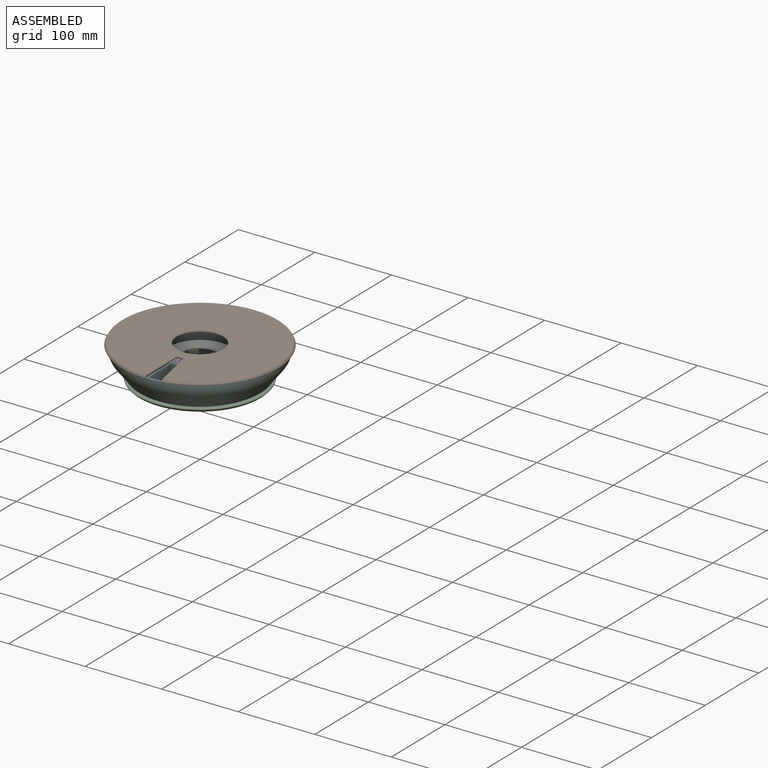
[diagram: assembled view]
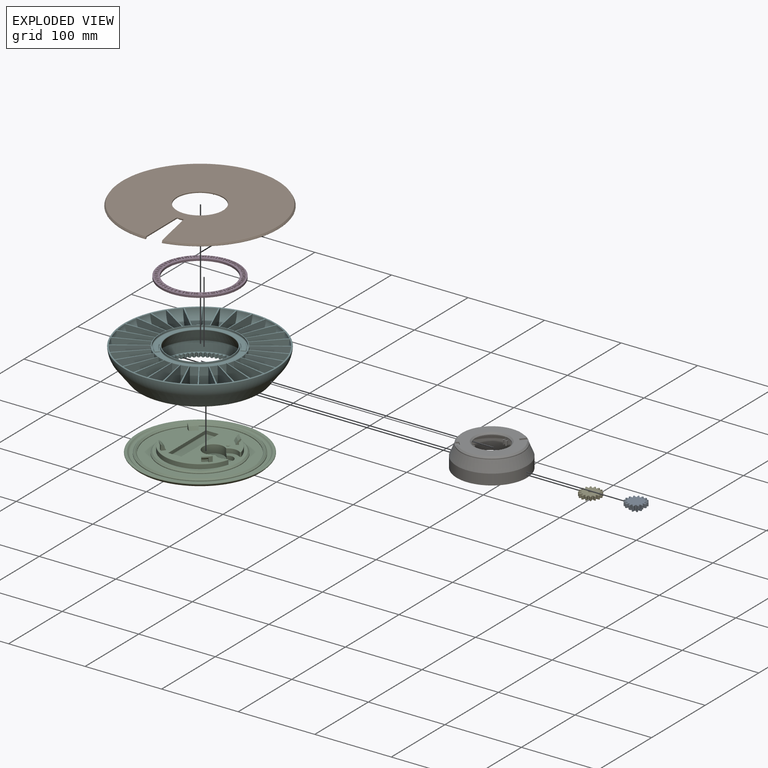
[diagram: exploded view]
GUIDED TOUR — FREECAD ASSEMBLY "smart_medication_box_v3"

This assembly has 7 components, labeled P0..P6 below (a component is one placed body or linked part; the same part can appear more than once), held together by 2 modeled joints plus 9 derived contact edges. A joint is a constraint between two components; its type names the relative motion it leaves free:
  CONTACT — a derived adjacency edge — the two components touch in the source model (clearance under 2% of the assembly's diagonal); it is measured from the geometry, not a modeled constraint,
  REVOLUTE — leaves rotation about the listed axis free (a hinge).
Axis/direction vectors are unit vectors and 'through' points are millimeter coordinates, both in the assembly's world frame.

MATES
  1. REVOLUTE [Revolute] "Joint": P4 <-> P2, axis (0.000, 0.000, 1.000) through (17.75, 0.00, 1.00) mm
  2. REVOLUTE [Revolute] "Joint001": P0 <-> P2, axis (0.000, 0.000, -1.000) through (36.00, 0.00, 1.00) mm
  3. CONTACT "contact_0_4": P0 <-> P4, contact direction (-1.000, 0.000, 0.000) through (27.26, -4.80, 5.98) mm (derived from contact, not a modeled constraint)
  4. CONTACT "contact_0_5": P0 <-> P5, contact direction (-1.000, 0.000, 0.000) through (47.04, 3.34, 10.96) mm (derived from contact, not a modeled constraint)
  5. CONTACT "contact_0_6": P0 <-> P6, contact direction (-0.615, 0.000, 0.789) through (41.70, -4.07, 2.77) mm (derived from contact, not a modeled constraint)
  6. CONTACT "contact_1_3": P1 <-> P3, contact direction (0.000, 0.000, -1.000) through (2.35, -42.67, 43.36) mm (derived from contact, not a modeled constraint)
  7. CONTACT "contact_1_5": P1 <-> P5, contact direction (0.000, 0.000, -1.000) through (-7.81, 39.85, 41.32) mm (derived from contact, not a modeled constraint)
  8. CONTACT "contact_2_5": P2 <-> P5, contact direction (-0.615, 0.000, 0.789) through (-46.35, -8.06, 6.00) mm (derived from contact, not a modeled constraint)
  9. CONTACT "contact_2_6": P2 <-> P6, contact direction (-0.615, 0.000, 0.789) through (30.44, -31.66, 18.80) mm (derived from contact, not a modeled constraint)
  10. CONTACT "contact_3_5": P3 <-> P5, contact direction (0.000, 0.000, -1.000) through (27.28, -32.84, 39.94) mm (derived from contact, not a modeled constraint)
  11. CONTACT "contact_5_6": P5 <-> P6, contact direction (1.000, 0.000, 0.000) through (-45.39, 5.20, 5.56) mm (derived from contact, not a modeled constraint)

ASSEMBLY ORDER
  1. P5 — the base component [order heuristic]
  2. P0 — core [order heuristic]
  3. P3 [order verified]
  4. P6 — core [order heuristic]
  5. P4 — core [order heuristic]
  6. P2 — core [order heuristic]
  7. P1 [order verified]
(P3 verified with a relaxed clearance tolerance: the source model stores slight part interference there.)
Order-tag legend:
  [order verified] — this step's position reverses a verified removal order: the component was checked to insert without passing through the ones already placed.
  [order heuristic] — the first 5 components form the assembly's core: parts whose collision-free extraction could not be verified, listed in mate-graph order.

Of the 7 components, 7 carry a construction recipe — the FreeCAD feature program (sketches with constraints, then the solid features that consume them) that regenerates the part from scratch, quoted from this document or from the linked companion document it references; the rest are supplied as boundary geometry only. The tour below walks the components in assembly order: each is shown spotlighted twice — in the assembled view, then in the exploded view, where a leader line traces a displaced component back to its assembled socket (components that stay in place when exploded have no leader line; saturated green if recipe-attached, orange if geometry-only; every other component desaturated gray) — followed by its recipe or geometry summary and the mates that hold it.
NOTE — this tour is split across 2 documents so each fits a 32k-token context. This is document 1: the component sections continue in the remaining 1 document, each repeating the header above.
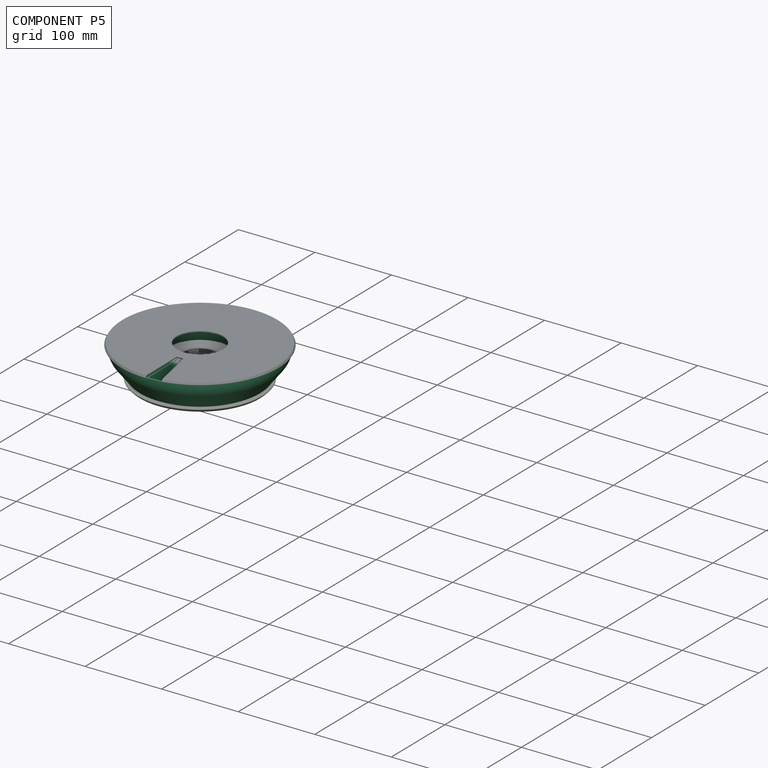
[diagram: component P5 — assembled]
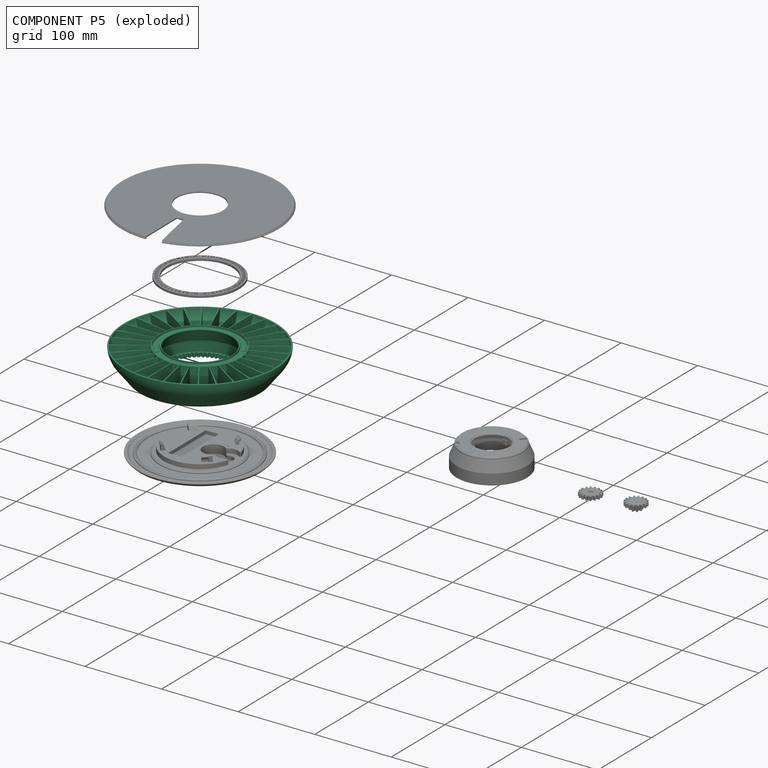
[diagram: component P5 — exploded]
COMPONENT P5 — recipe-attached ("pill_sections", modeled in this document).
Held by: resting contact with P0 (derived edge); resting contact with P1 (derived edge); resting contact with P2 (derived edge); resting contact with P3 (derived edge); resting contact with P6 (derived edge).
Construction recipe (the document's own serialized feature program — sketch geometry with constraints, then the solid features built on it; lengths are millimeters unless a unit is written):

FEATURE [PartDesign::FeaturePython] InternalInvoluteGear  # WARN: FeaturePython — macro-defined, semantics opaque (R4)
  AttacherType = Attacher::AttachEngine3D
  Suppressed = false
  addendum_diameter = 94.2
  angular_backlash = 0
  backlash = 0
  clearance = 0.2
  double_helix = false
  head = -0.4
  head_fillet = 0
  height = 5
  helix_angle = 0
  module = 1.5
  num_teeth = 64
  numpoints = 20
  outside_diameter = 106
  pitch_diameter = 96
  pressure_angle = 20
  properties_from_tool = false
  reversed_backlash = false
  root_diameter = 99.6
  root_fillet = 0
  shift = 0
  simple = false
  thickness = 5
  transverse_pitch = 4.71239
  version = 1.3.0
  expr: angular_backlash = backlash / pitch_diameter * 360 ° / pi
  expr: clearance = 0.2
  expr: module = 1.5
  expr: num_teeth = 64
  expr: pressure_angle = 20
FEATURE [Sketcher::SketchObject] Sketch010
  ArcFitTolerance = 1e-06
  ExternalGeometry = -> [InternalInvoluteGear]
  FullyConstrained = false
  MakeInternals = false
  MapMode = 5
  Placement = pos=(53,0,0) rot=(1,0,0;1.5708rad)
  expr: Constraints[10] = VarSet.outer_wall_thickness
  expr: Constraints[11] = VarSet.outer_wall_thickness
  expr: Constraints[14] = VarSet.outer_wall_thickness
  expr: Constraints[17] = VarSet.fillet_oouter_gear
  expr: Constraints[2] = 5
  expr: Constraints[34] = VarSet.outer_wall_thickness
  expr: Constraints[36] = VarSet.outer_ring_height
  expr: Constraints[37] = VarSet.fillet_oouter_gear
  expr: Constraints[38] = 30
  expr: Constraints[45] = VarSet.fillet_oouter_gear
  expr: Constraints[50] = 50
  expr: Constraints[52] = 10
  expr: Constraints[6] = 25
  expr: Constraints[9] = VarSet.outer_wall_thickness
  sketch-geometry (28):
    g0: LineSegment StartX=0 StartY=0 StartZ=0 EndX=0 EndY=5 EndZ=0
    g1: LineSegment StartX=0 StartY=0 StartZ=0 EndX=24.1018 EndY=0 EndZ=0
    g2: LineSegment StartX=25.5967 StartY=0.67138 StartZ=0 EndX=34.1854 EndY=10.3351 EndZ=0
    g3: LineSegment StartX=24.6985 StartY=2.67138 StartZ=0 EndX=32.6905 EndY=11.6638 EndZ=0
    g4: LineSegment StartX=9.57963 StartY=2 StartZ=0 EndX=23.2036 EndY=2 EndZ=0
    g5: LineSegment StartX=0 StartY=5 StartZ=0 EndX=-2 EndY=5 EndZ=0
    g6: LineSegment StartX=-0.122418 StartY=35.2036 StartZ=0 EndX=0 EndY=7.67973 EndZ=0
    g7: LineSegment StartX=8.57963 StartY=2.26795 StartZ=0 EndX=0.399992 EndY=6.99046 EndZ=0
    g8: ArcOfCircle CenterX=0.799992 CenterY=7.68328 CenterZ=0 NormalX=0 NormalY=0 NormalZ=1 AngleXU=0 Radius=0.8 StartAngle=3.14604 EndAngle=4.18879
    g9: ArcOfCircle CenterX=9.57963 CenterY=4 CenterZ=0 NormalX=0 NormalY=0 NormalZ=1 AngleXU=0 Radius=2 StartAngle=4.18879 EndAngle=4.71239
    g10: GeomPoint [constr] X=9.04373 Y=2 Z=0
    g11: ArcOfCircle CenterX=23.2036 CenterY=4 CenterZ=0 NormalX=0 NormalY=0 NormalZ=1 AngleXU=0 Radius=2 StartAngle=4.71239 EndAngle=5.55662
    g12: GeomPoint [constr] X=24.1018 Y=2 Z=0
    g13: ArcOfCircle CenterX=24.1018 CenterY=2 CenterZ=0 NormalX=0 NormalY=0 NormalZ=1 AngleXU=0 Radius=2 StartAngle=4.71239 EndAngle=5.55662
    g14: GeomPoint [constr] X=25 Y=0 Z=0
    g15: GeomPoint [constr] X=29 Y=4.50065 Z=0
    g16: GeomPoint [constr] X=27 Y=5.26097 Z=0
    g17: ArcOfCircle CenterX=-0.92241 CenterY=35.2 CenterZ=0 NormalX=0 NormalY=0 NormalZ=1 AngleXU=0 Radius=0.8 StartAngle=0.00444768 EndAngle=1.5708
    g18: LineSegment StartX=-10.9224 StartY=36 StartZ=0 EndX=-5.92241 EndY=36 EndZ=0
    g19: ArcOfCircle CenterX=-4.68233 CenterY=44.8792 CenterZ=0 NormalX=0 NormalY=0 NormalZ=1 AngleXU=0 Radius=52 StartAngle=5.55662 EndAngle=6.09299
    g20: ArcOfCircle CenterX=-4.68233 CenterY=44.8792 CenterZ=0 NormalX=0 NormalY=0 NormalZ=1 AngleXU=0 Radius=50 StartAngle=5.55662 EndAngle=6.09148
    g21: ArcOfCircle CenterX=45.187 CenterY=35.2 CenterZ=0 NormalX=0 NormalY=0 NormalZ=1 AngleXU=0 Radius=0.8 StartAngle=1.5708 EndAngle=2.94988
    g22: LineSegment StartX=45.5944 StartY=36 StartZ=0 EndX=45.187 EndY=36 EndZ=0
    g23: ArcOfCircle CenterX=45.5944 CenterY=35.2 CenterZ=0 NormalX=0 NormalY=0 NormalZ=1 AngleXU=0 Radius=0.8 StartAngle=6.09299 EndAngle=7.85398
    g24: ArcOfCircle CenterX=-10.9224 CenterY=35.2 CenterZ=0 NormalX=0 NormalY=0 NormalZ=1 AngleXU=0 Radius=0.8 StartAngle=1.5708 EndAngle=3.66964
    g25: LineSegment StartX=-11.6134 StartY=34.7969 StartZ=0 EndX=-2.05968 EndY=18.418 EndZ=0
    g26: LineSegment StartX=-2.05968 StartY=18.418 StartZ=0 EndX=-2 EndY=5 EndZ=0
    g27: LineSegment StartX=-5.92241 StartY=36 StartZ=0 EndX=-0.92241 EndY=36 EndZ=0
  constraints (68):
    c: Coincident(g0,g-1)
    c: PointOnObject(g0,g-2)
    c: DistanceY(g0,g0) = 5
    c: Coincident(g1,g0)
    c: PointOnObject(g14,g-1)
    c: Parallel(g3,g2)
    c: DistanceX(g1,g14) = 25
    c: DistanceX(g14,g15) = 4
    c: Parallel(g4,g1)
    c: Distance(g1,g4) = 2
    c: DistanceX(g16,g15) = 2
    c: Distance(g14,g3) = 2
    c: Coincident(g5,g0)
    c: Horizontal(g5)
    c: DistanceX(g5,g5) = 2
    c: Tangent(g8,g7) = 1.5708
    c: Tangent(g8,g6) = -1.5708
    c: Radius(g8) = 0.8
    c: PointOnObject(g6,g-2)
    c: PointOnObject(g10,g7)
    c: PointOnObject(g10,g4)
    c: Tangent(g7,g9) = 1.5708
    c: Tangent(g4,g9) = -1.5708
    c: PointOnObject(g12,g4)
    c: PointOnObject(g12,g3)
    c: Tangent(g4,g11) = -1.5708
    c: Tangent(g3,g11) = -1.5708
    c: PointOnObject(g14,g1)
    c: PointOnObject(g14,g2)
    c: Tangent(g1,g13) = -1.5708
    c: Tangent(g2,g13) = -1.5708
    c: PointOnObject(g15,g2)
    c: PointOnObject(g16,g3)
    c: Equal(g13,g11)
    c: Distance(g0,g8) = 2
    c: Tangent(g17,g6) = 1.5708
    c: Distance(g18,g-1) = 36
    c: Radius(g17) = 0.8
    c: Angle(g7,g1) = 0.523599
    c: Equal(g11,g9)
    c: Coincident(g20,g19)
    c: Tangent(g20,g3) = -1.5708
    c: Tangent(g19,g2) = -1.5708
    c: Tangent(g22,g21) = -1.5708
    c: Tangent(g21,g20) = 1.5708
    c: Radius(g21) = 0.8
    c: Tangent(g23,g22) = -1.5708
    c: Tangent(g23,g19) = -1.5708
    c: Equal(g23,g21)
    c: Parallel(g22,g-1)
    c: Radius(g20) = 50
    c: Radius(g11) = 2
    c: DistanceX(g18,g27) = 10
    c: Tangent(g24,g18) = 1.5708
    c: Equal(g24,g17)
    c: Coincident(g26,g25)
    c: Coincident(g26,g5)
    c: Parallel(g26,g6)
    c: Tangent(g25,g24) = -1.5708
    c: Perpendicular(g-2,g18)
    c: Perpendicular(g-2,g27)
    c: Coincident(g18,g27)
    c: Tangent(g27,g17) = 1.5708
    c: Equal(g27,g18)
    c: Angle(g26,g25) = 0.523599
    c: Vertical(g18,g-3)
    c: Distance(g-1,g22) = 36
    c: DistanceX(g-1,g19) = 46.38
FEATURE [PartDesign::Revolution] Revolution001
  Angle = 360
  Angle2 = 60
  Axis = (1e-16,1e-16,1)
  Base = (0,0,0)
  BaseFeature = -> InternalInvoluteGear
  Profile = -> Sketch010
  ReferenceAxis = -> Z_Axis013
  Refine = true
  Reversed = true
  Suppressed = false
  Type = 0
FEATURE [Sketcher::SketchObject] Sketch011
  ArcFitTolerance = 1e-06
  ExternalGeometry = -> [Revolution001]
  FullyConstrained = true
  MakeInternals = false
  MapMode = 5
  Placement = pos=(53,0,0) rot=(1,0,0;1.5708rad)
  sketch-geometry (2):
    g0: LineSegment StartX=-0.92241 StartY=36 StartZ=0 EndX=45.187 EndY=36 EndZ=0
    g1: LineSegment StartX=9.57963 StartY=2 StartZ=0 EndX=23.2036 EndY=2 EndZ=0
  constraints (4):
    c: Coincident(g0,g-11)
    c: Coincident(g0,g-7)
    c: Tangent(g1,g-6) = -1.5708
    c: Coincident(g1,g-8)
FEATURE [PartDesign::Revolution] Revolution002
  Angle = 1
  Angle2 = 60
  Axis = (1e-16,1e-16,1)
  Base = (0,0,0)
  BaseFeature = -> Revolution001
  Midplane = true
  Profile = -> Sketch011
  ReferenceAxis = -> Z_Axis013
  Refine = true
  Suppressed = false
  Type = 0
  expr: Angle = 1
FEATURE [PartDesign::PolarPattern] PolarPattern
  Angle = 360
  Axis = -> Z_Axis013
  BaseFeature = -> Revolution002
  Mode = 0
  Occurrences = 32
  Offset = 120
  Originals = -> [Revolution002]
  Refine = true
  Suppressed = false
  TransformMode = 0
  expr: Occurrences = 32
FEATURE [Sketcher::SketchObject] Sketch015
  ArcFitTolerance = 1e-06
  AttachmentSupport = -> [PolarPattern]
  ExternalGeometry = -> [PolarPattern]
  FullyConstrained = true
  MakeInternals = false
  MapMode = 5
  Placement = pos=(4e-15,4e-15,36) rot=(0,0,1;0rad)
  expr: Constraints[13] = 9
  sketch-geometry (5):
    g0: Circle [constr] CenterX=0 CenterY=0 CenterZ=0 NormalX=0 NormalY=0 NormalZ=1 AngleXU=0 Radius=52.0776
    g1: Circle CenterX=0 CenterY=0 CenterZ=0 NormalX=0 NormalY=0 NormalZ=1 AngleXU=0 Radius=42.5776
    g2: Circle CenterX=0 CenterY=0 CenterZ=0 NormalX=0 NormalY=0 NormalZ=1 AngleXU=0 Radius=51.5776
    g3: LineSegment [constr] StartX=-42.5776 StartY=0 StartZ=0 EndX=-42.0776 EndY=0 EndZ=0
    g4: LineSegment [constr] StartX=-52.0776 StartY=0 StartZ=0 EndX=-51.5776 EndY=0 EndZ=0
  constraints (14):
    c: Coincident(g0,g-3)
    c: PointOnObject(g-4,g0)
    c: Coincident(g1,g0)
    c: Coincident(g2,g0)
    c: PointOnObject(g3,g1)
    c: PointOnObject(g3,g-3)
    c: PointOnObject(g3,g-1)
    c: PointOnObject(g3,g-1)
    c: PointOnObject(g4,g0)
    c: PointOnObject(g4,g2)
    c: PointOnObject(g4,g-1)
    c: PointOnObject(g4,g-1)
    c: Equal(g4,g3)
    c: Distance(g2,g1) = 9
FEATURE [PartDesign::Pocket] Pocket005
  BaseFeature = -> PolarPattern
  Direction = (0,0,-1)
  Length = 3
  Length2 = 5
  Profile = -> Sketch015
  ReferenceAxis = -> Sketch015 [N_Axis]
  Refine = true
  Suppressed = false
  Type = 0
  expr: Length = 3
FEATURE [PartDesign::Fillet] Fillet003
  Base = -> Pocket005 [Edge312,Edge949]
  BaseFeature = -> Pocket005
  Radius = 1
  Refine = true
  SupportTransform = false
  Suppressed = false
  UseAllEdges = false
  expr: Radius = 1
FEATURE [Sketcher::SketchObject] Sketch016
  ArcFitTolerance = 1e-06
  AttachmentSupport = -> [Fillet003]
  FullyConstrained = false
  MakeInternals = false
  MapMode = 5
  Placement = pos=(0,0,33) rot=(0,0,1;0rad)
  sketch-geometry (8):
    g0: ArcOfCircle CenterX=4e-15 CenterY=4e-15 CenterZ=0 NormalX=0 NormalY=0 NormalZ=1 AngleXU=0 Radius=44.0776 StartAngle=1.01451 EndAngle=1.42895
    g1: ArcOfCircle CenterX=4e-15 CenterY=4e-15 CenterZ=0 NormalX=0 NormalY=0 NormalZ=1 AngleXU=0 Radius=50.0776 StartAngle=1.01451 EndAngle=1.42895
    g2: LineSegment StartX=6.23147 StartY=43.6349 StartZ=0 EndX=7.07972 EndY=49.5746 EndZ=0
    g3: LineSegment StartX=23.2744 StartY=37.4318 StartZ=0 EndX=26.4426 EndY=42.5271 EndZ=0
    g4: LineSegment [constr] StartX=23.2744 StartY=37.4318 StartZ=0 EndX=23.0104 EndY=37.0071 EndZ=0
    g5: LineSegment [constr] StartX=26.4426 StartY=42.5271 StartZ=0 EndX=26.7066 EndY=42.9517 EndZ=0
    g6: LineSegment [constr] StartX=4e-15 StartY=4e-15 StartZ=0 EndX=-40.9495 EndY=14.9044 EndZ=0
    g7: LineSegment [constr] StartX=4e-15 StartY=4e-15 StartZ=0 EndX=14.9044 EndY=40.9495 EndZ=0
  constraints (22):
    c: Coincident(g0,g-4)
    c: Coincident(g1,g0)
    c: Coincident(g2,g0)
    c: Coincident(g2,g1)
    c: Coincident(g3,g0)
    c: Coincident(g3,g1)
    c: Equal(g2,g3)
    c: Perpendicular(g0,g2)
    c: Coincident(g4,g0)
    c: PointOnObject(g4,g-4)
    c: Coincident(g5,g1)
    c: PointOnObject(g5,g-3)
    c: Parallel(g4,g3)
    c: Parallel(g3,g5)
    c: Equal(g5,g4)
    c: Distance(g3,g3) = 6
    c: Coincident(g6,g0)
    c: Angle(g6,g-1) = 0.349066
    c: PointOnObject(g6,g-4)
    c: Coincident(g7,g0)
    c: Perpendicular(g6,g7)
    c: Equal(g7,g6)
FEATURE [PartDesign::Pad] Pad004
  BaseFeature = -> Fillet003
  Direction = (0,0,1)
  Length = 1.5
  Length2 = 10
  Profile = -> Sketch016
  ReferenceAxis = -> Sketch016 [N_Axis]
  Refine = true
  Suppressed = false
  Type = 0
  expr: Length = 1.5
FEATURE [PartDesign::PolarPattern] PolarPattern002
  Angle = 360
  Axis = -> Sketch016 [N_Axis]
  BaseFeature = -> Pad004
  Mode = 0
  Occurrences = 2
  Offset = 120
  Originals = -> [Pad004]
  Refine = true
  Suppressed = false
  TransformMode = 0
FEATURE [PartDesign::Fillet] Fillet004
  Base = -> PolarPattern002 [Face177,Face175]
  BaseFeature = -> PolarPattern002
  Radius = 1
  Refine = true
  SupportTransform = false
  Suppressed = false
  UseAllEdges = false
FEATURE [PartDesign::Body] Body016  label="outer_gear"
  AllowCompound = false
  Group = -> [InternalInvoluteGear,Sketch010,Revolution001,Sketch011,Revolution002,PolarPattern,Sketch015,Pocket005,Fillet003,Sketch016,Pad004,PolarPattern002,Fillet004]
  Origin = -> Origin026
  Placement = pos=(0,0,41) rot=(0,0,1;0rad)
  Tip = -> Fillet004
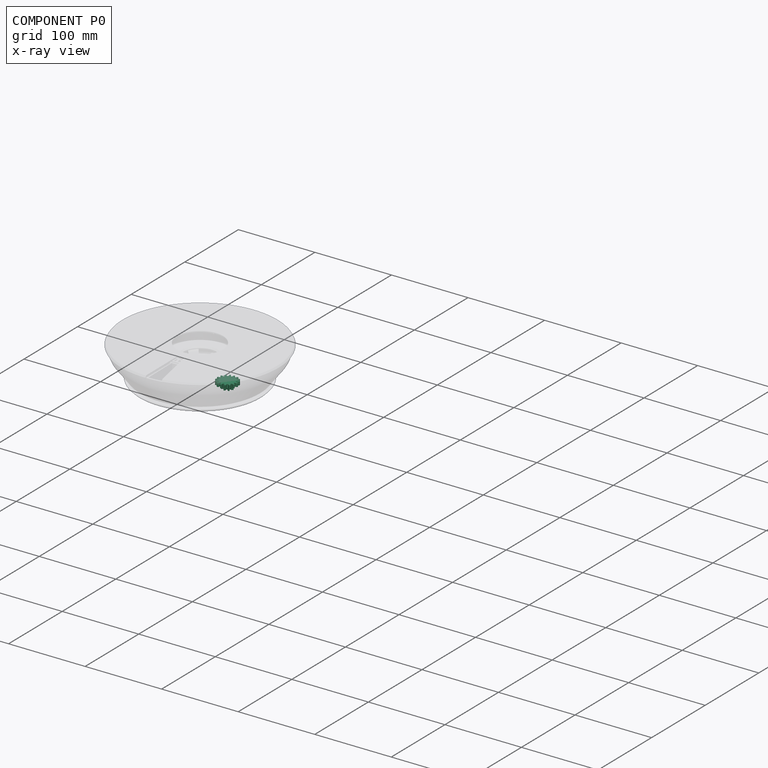
[diagram: component P0 — x-ray view]
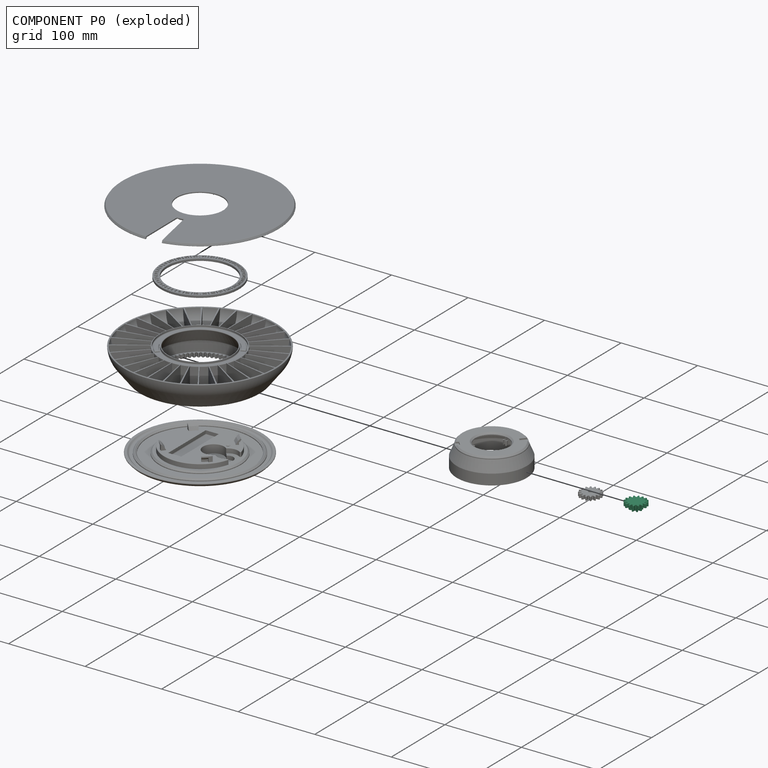
[diagram: component P0 — exploded]
COMPONENT P0 — recipe-attached ("middle_gear", modeled in this document).
Held by: REVOLUTE mate "Joint001" to P2; resting contact with P4 (derived edge); resting contact with P5 (derived edge); resting contact with P6 (derived edge).
Construction recipe (the document's own serialized feature program — sketch geometry with constraints, then the solid features built on it; lengths are millimeters unless a unit is written):

FEATURE [PartDesign::Boolean] Boolean
  Group = -> [InvoluteGear003,InvoluteGear002,Body017]
  Refine = true
  Suppressed = false
  Type = 0
  UsePlacement = true
FEATURE [PartDesign::Fillet] Fillet001
  Base = -> Boolean [Face4]
  BaseFeature = -> Boolean
  Radius = 0.25
  Refine = true
  SupportTransform = false
  Suppressed = false
  UseAllEdges = false
  expr: Radius = 0.25
FEATURE [PartDesign::Fillet] Fillet002
  Base = -> Fillet001 [Face4,Face243]
  BaseFeature = -> Fillet001
  Radius = 0.2
  Refine = true
  SupportTransform = false
  Suppressed = false
  UseAllEdges = false
  expr: Radius = 0.2
FEATURE [Sketcher::SketchObject] Sketch035
  ArcFitTolerance = 1e-06
  AttachmentSupport = -> [Fillet002]
  FullyConstrained = true
  MakeInternals = false
  MapMode = 5
  Placement = pos=(0,0,56) rot=(0,0,1;0rad)
  expr: Constraints[0] = 5.1
  sketch-geometry (1):
    g0: Circle CenterX=0 CenterY=0 CenterZ=0 NormalX=0 NormalY=0 NormalZ=1 AngleXU=0 Radius=2.55
  constraints (2):
    c: Diameter(g0) = 5.1
    c: Coincident(g0,g-1)
FEATURE [PartDesign::Pocket] Pocket009
  BaseFeature = -> Fillet002
  Direction = (0,0,-1)
  Length = 2.55
  Length2 = 5
  Profile = -> Sketch035
  ReferenceAxis = -> Sketch035 [N_Axis]
  Refine = true
  Suppressed = false
  Type = 0
  expr: Length = 2.5 * 1.02
FEATURE [PartDesign::Fillet] Fillet022
  Base = -> Pocket009 [Edge1011,Edge1009]
  BaseFeature = -> Pocket009
  Radius = 0.2
  Refine = true
  SupportTransform = false
  Suppressed = false
  UseAllEdges = false
  expr: Radius = 0.2
FEATURE [PartDesign::Body] Body018
  AllowCompound = false
  Group = -> [Boolean,Fillet001,Fillet002,Sketch035,Pocket009,Fillet022]
  Origin = -> Origin030
  Tip = -> Fillet022
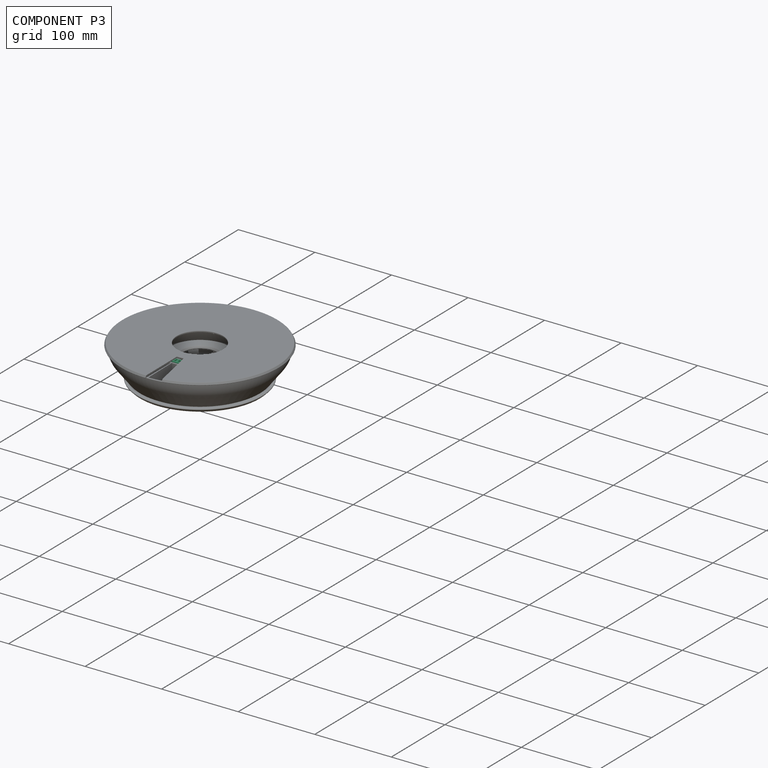
[diagram: component P3 — assembled]
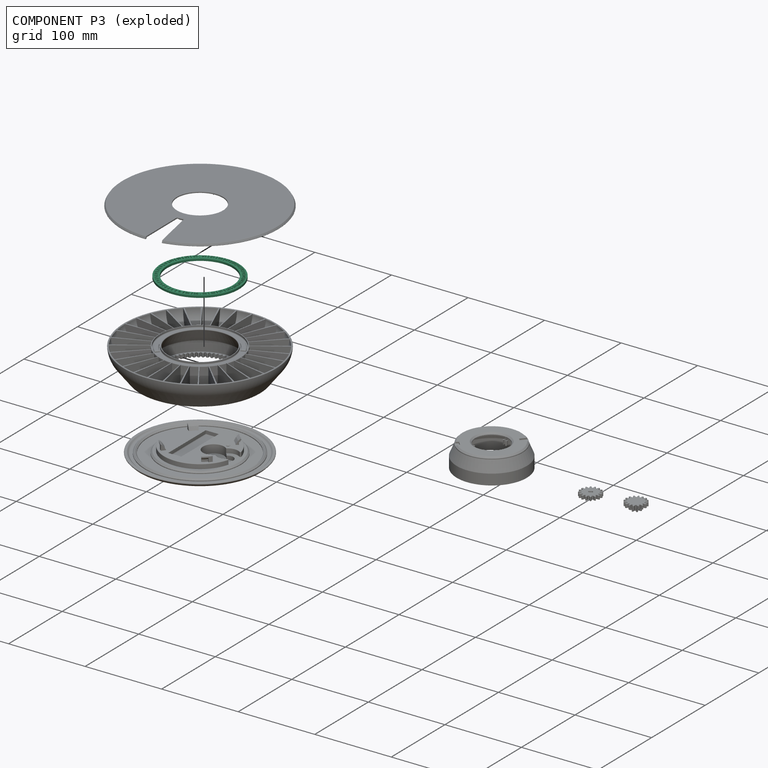
[diagram: component P3 — exploded]
COMPONENT P3 — recipe-attached ("desc_upper_ring", modeled in this document).
Held by: resting contact with P1 (derived edge); resting contact with P5 (derived edge).
Construction recipe (the document's own serialized feature program — sketch geometry with constraints, then the solid features built on it; lengths are millimeters unless a unit is written):

FEATURE [Sketcher::SketchObject] Sketch021
  ArcFitTolerance = 1e-06
  AttachmentSupport = -> [XY_Plane018]
  FullyConstrained = true
  MakeInternals = false
  MapMode = 2
  expr: Constraints[2] = 42.75 * 2
  expr: Constraints[3] = 51 * 2
  sketch-geometry (2):
    g0: Circle CenterX=0 CenterY=0 CenterZ=0 NormalX=0 NormalY=0 NormalZ=1 AngleXU=0 Radius=42.75
    g1: Circle CenterX=0 CenterY=0 CenterZ=0 NormalX=0 NormalY=0 NormalZ=1 AngleXU=0 Radius=51
  constraints (4):
    c: Coincident(g0,g-1)
    c: Coincident(g1,g0)
    c: Diameter(g0) = 85.5
    c: Diameter(g1) = 102
FEATURE [PartDesign::Pad] Pad006
  Direction = (0,0,1)
  Length = 3
  Length2 = 10
  Profile = -> Sketch021
  ReferenceAxis = -> Sketch021 [N_Axis]
  Refine = true
  Suppressed = false
  Type = 0
  expr: Length = 3
FEATURE [Sketcher::SketchObject] Sketch022
  ArcFitTolerance = 1e-06
  AttachmentSupport = -> [Pad006]
  FullyConstrained = false
  MakeInternals = false
  MapMode = 5
  Placement = pos=(0,0,3) rot=(0,0,1;0rad)
  sketch-geometry (4):
    g0: ArcOfCircle CenterX=0 CenterY=0 CenterZ=0 NormalX=0 NormalY=0 NormalZ=1 AngleXU=0 Radius=44.0776 StartAngle=1.00579 EndAngle=1.42022
    g1: ArcOfCircle CenterX=0 CenterY=0 CenterZ=0 NormalX=0 NormalY=0 NormalZ=1 AngleXU=0 Radius=50.0776 StartAngle=1.00579 EndAngle=1.42022
    g2: LineSegment StartX=6.61199 StartY=43.5789 StartZ=0 EndX=7.51204 EndY=49.511 EndZ=0
    g3: LineSegment StartX=23.6002 StartY=37.2272 StartZ=0 EndX=26.8127 EndY=42.2947 EndZ=0
  constraints (8):
    c: Coincident(g1,g0)
    c: Coincident(g2,g0)
    c: Coincident(g2,g1)
    c: Coincident(g3,g0)
    c: Coincident(g3,g1)
    c: Equal(g2,g3)
    c: Perpendicular(g0,g2)
    c: Distance(g3,g3) = 6
FEATURE [PartDesign::Pocket] Pocket006
  BaseFeature = -> Pad006
  Direction = (0,0,-1)
  Length = 1.5
  Length2 = 5
  Profile = -> Sketch022
  ReferenceAxis = -> Sketch022 [N_Axis]
  Refine = true
  Suppressed = false
  Type = 0
  expr: Length = 1.5
FEATURE [PartDesign::PolarPattern] PolarPattern005
  Angle = 360
  Axis = -> Sketch022 [N_Axis]
  BaseFeature = -> Pocket006
  Mode = 0
  Occurrences = 2
  Offset = 120
  Originals = -> [Pocket006]
  Refine = true
  Suppressed = false
  TransformMode = 0
FEATURE [PartDesign::Fillet] Fillet010
  Base = -> PolarPattern005 [Face2]
  BaseFeature = -> PolarPattern005
  Radius = 0.3
  Refine = true
  SupportTransform = false
  Suppressed = false
  UseAllEdges = false
  expr: Radius = 0.3
FEATURE [PartDesign::Fillet] Fillet011
  Base = -> Fillet010 [Face3]
  BaseFeature = -> Fillet010
  Radius = 0.4
  Refine = true
  SupportTransform = false
  Suppressed = false
  UseAllEdges = false
  expr: Radius = 0.4
FEATURE [Sketcher::SketchObject] Sketch023
  ArcFitTolerance = 1e-06
  AttachmentSupport = -> [Fillet011]
  FullyConstrained = false
  MakeInternals = false
  MapMode = 5
  Placement = pos=(0,0,0) rot=(1,0,0;3.14159rad)
  sketch-geometry (1190):
    g0: BSplineCurve PolesCount=2 KnotsCount=2 Degree=1 IsPeriodic=0
    g1: BSplineCurve PolesCount=2 KnotsCount=2 Degree=1 IsPeriodic=0
    g2: BSplineCurve PolesCount=2 KnotsCount=2 Degree=1 IsPeriodic=0
    g3: BSplineCurve PolesCount=2 KnotsCount=2 Degree=1 IsPeriodic=0
    g4: BSplineCurve PolesCount=2 KnotsCount=2 Degree=1 IsPeriodic=0
    g5: BSplineCurve PolesCount=2 KnotsCount=2 Degree=1 IsPeriodic=0
    g6: BSplineCurve PolesCount=2 KnotsCount=2 Degree=1 IsPeriodic=0
    g7: BSplineCurve PolesCount=2 KnotsCount=2 Degree=1 IsPeriodic=0
    g8: BSplineCurve PolesCount=2 KnotsCount=2 Degree=1 IsPeriodic=0
    g9: BSplineCurve PolesCount=2 KnotsCount=2 Degree=1 IsPeriodic=0
    g10: BSplineCurve PolesCount=2 KnotsCount=2 Degree=1 IsPeriodic=0
    g11: BSplineCurve PolesCount=2 KnotsCount=2 Degree=1 IsPeriodic=0
    g12: BSplineCurve PolesCount=2 KnotsCount=2 Degree=1 IsPeriodic=0
    g13: BSplineCurve PolesCount=2 KnotsCount=2 Degree=1 IsPeriodic=0
    g14: BSplineCurve PolesCount=2 KnotsCount=2 Degree=1 IsPeriodic=0
    g15: BSplineCurve PolesCount=2 KnotsCount=2 Degree=1 IsPeriodic=0
    g16: BSplineCurve PolesCount=2 KnotsCount=2 Degree=1 IsPeriodic=0
    g17: BSplineCurve PolesCount=2 KnotsCount=2 Degree=1 IsPeriodic=0
    g18: BSplineCurve PolesCount=2 KnotsCount=2 Degree=1 IsPeriodic=0
    g19: BSplineCurve PolesCount=2 KnotsCount=2 Degree=1 IsPeriodic=0
    g20: BSplineCurve PolesCount=2 KnotsCount=2 Degree=1 IsPeriodic=0
    g21: BSplineCurve PolesCount=2 KnotsCount=2 Degree=1 IsPeriodic=0
    g22: BSplineCurve PolesCount=2 KnotsCount=2 Degree=1 IsPeriodic=0
    g23: BSplineCurve PolesCount=2 KnotsCount=2 Degree=1 IsPeriodic=0
    g24: BSplineCurve PolesCount=2 KnotsCount=2 Degree=1 IsPeriodic=0
    g25: BSplineCurve PolesCount=2 KnotsCount=2 Degree=1 IsPeriodic=0
    g26: BSplineCurve PolesCount=2 KnotsCount=2 Degree=1 IsPeriodic=0
    g27: BSplineCurve PolesCount=2 KnotsCount=2 Degree=1 IsPeriodic=0
    g28: BSplineCurve PolesCount=2 KnotsCount=2 Degree=1 IsPeriodic=0
    g29: BSplineCurve PolesCount=2 KnotsCount=2 Degree=1 IsPeriodic=0
    g30: BSplineCurve PolesCount=2 KnotsCount=2 Degree=1 IsPeriodic=0
    g31: BSplineCurve PolesCount=2 KnotsCount=2 Degree=1 IsPeriodic=0
    g32: BSplineCurve PolesCount=2 KnotsCount=2 Degree=1 IsPeriodic=0
    g33: BSplineCurve PolesCount=2 KnotsCount=2 Degree=1 IsPeriodic=0
    g34: BSplineCurve PolesCount=2 KnotsCount=2 Degree=1 IsPeriodic=0
    g35: BSplineCurve PolesCount=2 KnotsCount=2 Degree=1 IsPeriodic=0
    g36: BSplineCurve PolesCount=2 KnotsCount=2 Degree=1 IsPeriodic=0
    g37: BSplineCurve PolesCount=2 KnotsCount=2 Degree=1 IsPeriodic=0
    g38: BSplineCurve PolesCount=2 KnotsCount=2 Degree=1 IsPeriodic=0
    g39: BSplineCurve PolesCount=2 KnotsCount=2 Degree=1 IsPeriodic=0
    g40: BSplineCurve PolesCount=2 KnotsCount=2 Degree=1 IsPeriodic=0
    g41: BSplineCurve PolesCount=2 KnotsCount=2 Degree=1 IsPeriodic=0
    g42: BSplineCurve PolesCount=2 KnotsCount=2 Degree=1 IsPeriodic=0
    g43: BSplineCurve PolesCount=2 KnotsCount=2 Degree=1 IsPeriodic=0
    g44: BSplineCurve PolesCount=2 KnotsCount=2 Degree=1 IsPeriodic=0
    g45: BSplineCurve PolesCount=2 KnotsCount=2 Degree=1 IsPeriodic=0
    g46: BSplineCurve PolesCount=2 KnotsCount=2 Degree=1 IsPeriodic=0
    g47: BSplineCurve PolesCount=2 KnotsCount=2 Degree=1 IsPeriodic=0
    g48: BSplineCurve PolesCount=2 KnotsCount=2 Degree=1 IsPeriodic=0
    g49: BSplineCurve PolesCount=2 KnotsCount=2 Degree=1 IsPeriodic=0
    g50: BSplineCurve PolesCount=2 KnotsCount=2 Degree=1 IsPeriodic=0
    g51: BSplineCurve PolesCount=2 KnotsCount=2 Degree=1 IsPeriodic=0
    g52: BSplineCurve PolesCount=2 KnotsCount=2 Degree=1 IsPeriodic=0
    g53: BSplineCurve PolesCount=2 KnotsCount=2 Degree=1 IsPeriodic=0
    g54: BSplineCurve PolesCount=2 KnotsCount=2 Degree=1 IsPeriodic=0
    g55: BSplineCurve PolesCount=2 KnotsCount=2 Degree=1 IsPeriodic=0
    g56: BSplineCurve PolesCount=2 KnotsCount=2 Degree=1 IsPeriodic=0
    g57: BSplineCurve PolesCount=2 KnotsCount=2 Degree=1 IsPeriodic=0
    g58: BSplineCurve PolesCount=2 KnotsCount=2 Degree=1 IsPeriodic=0
    g59: BSplineCurve PolesCount=2 KnotsCount=2 Degree=1 IsPeriodic=0
    g60: BSplineCurve PolesCount=2 KnotsCount=2 Degree=1 IsPeriodic=0
    g61: BSplineCurve PolesCount=2 KnotsCount=2 Degree=1 IsPeriodic=0
    g62: BSplineCurve PolesCount=2 KnotsCount=2 Degree=1 IsPeriodic=0
    g63: BSplineCurve PolesCount=2 KnotsCount=2 Degree=1 IsPeriodic=0
    g64: BSplineCurve PolesCount=2 KnotsCount=2 Degree=1 IsPeriodic=0
    g65: BSplineCurve PolesCount=2 KnotsCount=2 Degree=1 IsPeriodic=0
    g66: BSplineCurve PolesCount=2 KnotsCount=2 Degree=1 IsPeriodic=0
    g67: BSplineCurve PolesCount=2 KnotsCount=2 Degree=1 IsPeriodic=0
    g68: BSplineCurve PolesCount=2 KnotsCount=2 Degree=1 IsPeriodic=0
    g69: BSplineCurve PolesCount=2 KnotsCount=2 Degree=1 IsPeriodic=0
    g70: BSplineCurve PolesCount=2 KnotsCount=2 Degree=1 IsPeriodic=0
    g71: BSplineCurve PolesCount=2 KnotsCount=2 Degree=1 IsPeriodic=0
    g72: BSplineCurve PolesCount=2 KnotsCount=2 Degree=1 IsPeriodic=0
    g73: BSplineCurve PolesCount=2 KnotsCount=2 Degree=1 IsPeriodic=0
    g74: BSplineCurve PolesCount=2 KnotsCount=2 Degree=1 IsPeriodic=0
    g75: BSplineCurve PolesCount=2 KnotsCount=2 Degree=1 IsPeriodic=0
    g76: BSplineCurve PolesCount=2 KnotsCount=2 Degree=1 IsPeriodic=0
    g77: BSplineCurve PolesCount=2 KnotsCount=2 Degree=1 IsPeriodic=0
    g78: BSplineCurve PolesCount=2 KnotsCount=2 Degree=1 IsPeriodic=0
    g79: BSplineCurve PolesCount=2 KnotsCount=2 Degree=1 IsPeriodic=0
    g80: BSplineCurve PolesCount=2 KnotsCount=2 Degree=1 IsPeriodic=0
    g81: BSplineCurve PolesCount=2 KnotsCount=2 Degree=1 IsPeriodic=0
    g82: BSplineCurve PolesCount=2 KnotsCount=2 Degree=1 IsPeriodic=0
    g83: BSplineCurve PolesCount=2 KnotsCount=2 Degree=1 IsPeriodic=0
    g84: BSplineCurve PolesCount=2 KnotsCount=2 Degree=1 IsPeriodic=0
    g85: BSplineCurve PolesCount=2 KnotsCount=2 Degree=1 IsPeriodic=0
    g86: BSplineCurve PolesCount=2 KnotsCount=2 Degree=1 IsPeriodic=0
    g87: BSplineCurve PolesCount=2 KnotsCount=2 Degree=1 IsPeriodic=0
    g88: BSplineCurve PolesCount=2 KnotsCount=2 Degree=1 IsPeriodic=0
    g89: BSplineCurve PolesCount=2 KnotsCount=2 Degree=1 IsPeriodic=0
    g90: BSplineCurve PolesCount=2 KnotsCount=2 Degree=1 IsPeriodic=0
    g91: BSplineCurve PolesCount=2 KnotsCount=2 Degree=1 IsPeriodic=0
    g92: BSplineCurve PolesCount=2 KnotsCount=2 Degree=1 IsPeriodic=0
    g93: BSplineCurve PolesCount=2 KnotsCount=2 Degree=1 IsPeriodic=0
    g94: BSplineCurve PolesCount=2 KnotsCount=2 Degree=1 IsPeriodic=0
    g95: BSplineCurve PolesCount=2 KnotsCount=2 Degree=1 IsPeriodic=0
    g96: BSplineCurve PolesCount=2 KnotsCount=2 Degree=1 IsPeriodic=0
    g97: BSplineCurve PolesCount=2 KnotsCount=2 Degree=1 IsPeriodic=0
    g98: BSplineCurve PolesCount=2 KnotsCount=2 Degree=1 IsPeriodic=0
    g99: BSplineCurve PolesCount=2 KnotsCount=2 Degree=1 IsPeriodic=0
    g100: BSplineCurve PolesCount=2 KnotsCount=2 Degree=1 IsPeriodic=0
    g101: BSplineCurve PolesCount=2 KnotsCount=2 Degree=1 IsPeriodic=0
    g102: BSplineCurve PolesCount=2 KnotsCount=2 Degree=1 IsPeriodic=0
    g103: BSplineCurve PolesCount=2 KnotsCount=2 Degree=1 IsPeriodic=0
    g104: BSplineCurve PolesCount=2 KnotsCount=2 Degree=1 IsPeriodic=0
    g105: BSplineCurve PolesCount=2 KnotsCount=2 Degree=1 IsPeriodic=0
    g106: BSplineCurve PolesCount=2 KnotsCount=2 Degree=1 IsPeriodic=0
    g107: BSplineCurve PolesCount=2 KnotsCount=2 Degree=1 IsPeriodic=0
    g108: BSplineCurve PolesCount=2 KnotsCount=2 Degree=1 IsPeriodic=0
    g109: BSplineCurve PolesCount=2 KnotsCount=2 Degree=1 IsPeriodic=0
    g110: BSplineCurve PolesCount=2 KnotsCount=2 Degree=1 IsPeriodic=0
    g111: BSplineCurve PolesCount=2 KnotsCount=2 Degree=1 IsPeriodic=0
    g112: BSplineCurve PolesCount=2 KnotsCount=2 Degree=1 IsPeriodic=0
    g113: BSplineCurve PolesCount=2 KnotsCount=2 Degree=1 IsPeriodic=0
    g114: BSplineCurve PolesCount=2 KnotsCount=2 Degree=1 IsPeriodic=0
    g115: BSplineCurve PolesCount=2 KnotsCount=2 Degree=1 IsPeriodic=0
    g116: BSplineCurve PolesCount=2 KnotsCount=2 Degree=1 IsPeriodic=0
    g117: BSplineCurve PolesCount=2 KnotsCount=2 Degree=1 IsPeriodic=0
    g118: BSplineCurve PolesCount=2 KnotsCount=2 Degree=1 IsPeriodic=0
    g119: BSplineCurve PolesCount=2 KnotsCount=2 Degree=1 IsPeriodic=0
    g120: BSplineCurve PolesCount=2 KnotsCount=2 Degree=1 IsPeriodic=0
    g121: BSplineCurve PolesCount=2 KnotsCount=2 Degree=1 IsPeriodic=0
    g122: BSplineCurve PolesCount=2 KnotsCount=2 Degree=1 IsPeriodic=0
    g123: BSplineCurve PolesCount=2 KnotsCount=2 Degree=1 IsPeriodic=0
    g124: BSplineCurve PolesCount=2 KnotsCount=2 Degree=1 IsPeriodic=0
    g125: BSplineCurve PolesCount=2 KnotsCount=2 Degree=1 IsPeriodic=0
    g126: BSplineCurve PolesCount=2 KnotsCount=2 Degree=1 IsPeriodic=0
    g127: BSplineCurve PolesCount=2 KnotsCount=2 Degree=1 IsPeriodic=0
    g128: BSplineCurve PolesCount=3 KnotsCount=2 Degree=2 IsPeriodic=0
    g129: BSplineCurve PolesCount=3 KnotsCount=2 Degree=2 IsPeriodic=0
    g130: BSplineCurve PolesCount=3 KnotsCount=2 Degree=2 IsPeriodic=0
    g131: BSplineCurve PolesCount=3 KnotsCount=2 Degree=2 IsPeriodic=0
    g132: BSplineCurve PolesCount=3 KnotsCount=2 Degree=2 IsPeriodic=0
    g133: BSplineCurve PolesCount=3 KnotsCount=2 Degree=2 IsPeriodic=0
    g134: BSplineCurve PolesCount=3 KnotsCount=2 Degree=2 IsPeriodic=0
    g135: BSplineCurve PolesCount=3 KnotsCount=2 Degree=2 IsPeriodic=0
    g136: BSplineCurve PolesCount=3 KnotsCount=2 Degree=2 IsPeriodic=0
    g137: BSplineCurve PolesCount=3 KnotsCount=2 Degree=2 IsPeriodic=0
    g138: BSplineCurve PolesCount=3 KnotsCount=2 Degree=2 IsPeriodic=0
    g139: BSplineCurve PolesCount=3 KnotsCount=2 Degree=2 IsPeriodic=0
    g140: BSplineCurve PolesCount=3 KnotsCount=2 Degree=2 IsPeriodic=0
    g141: BSplineCurve PolesCount=3 KnotsCount=2 Degree=2 IsPeriodic=0
    g142: BSplineCurve PolesCount=3 KnotsCount=2 Degree=2 IsPeriodic=0
    g143: BSplineCurve PolesCount=3 KnotsCount=2 Degree=2 IsPeriodic=0
    g144: BSplineCurve PolesCount=2 KnotsCount=2 Degree=1 IsPeriodic=0
    g145: BSplineCurve PolesCount=2 KnotsCount=2 Degree=1 IsPeriodic=0
    g146: BSplineCurve PolesCount=2 KnotsCount=2 Degree=1 IsPeriodic=0
    g147: BSplineCurve PolesCount=2 KnotsCount=2 Degree=1 IsPeriodic=0
    g148: BSplineCurve PolesCount=2 KnotsCount=2 Degree=1 IsPeriodic=0
    g149: BSplineCurve PolesCount=2 KnotsCount=2 Degree=1 IsPeriodic=0
    g150: BSplineCurve PolesCount=2 KnotsCount=2 Degree=1 IsPeriodic=0
    g151: BSplineCurve PolesCount=2 KnotsCount=2 Degree=1 IsPeriodic=0
    g152: BSplineCurve PolesCount=2 KnotsCount=2 Degree=1 IsPeriodic=0
    g153: BSplineCurve PolesCount=2 KnotsCount=2 Degree=1 IsPeriodic=0
    g154: BSplineCurve PolesCount=2 KnotsCount=2 Degree=1 IsPeriodic=0
    g155: BSplineCurve PolesCount=2 KnotsCount=2 Degree=1 IsPeriodic=0
    g156: BSplineCurve PolesCount=3 KnotsCount=2 Degree=2 IsPeriodic=0
    g157: BSplineCurve PolesCount=3 KnotsCount=2 Degree=2 IsPeriodic=0
    g158: BSplineCurve PolesCount=3 KnotsCount=2 Degree=2 IsPeriodic=0
    g159: BSplineCurve PolesCount=3 KnotsCount=2 Degree=2 IsPeriodic=0
    g160: BSplineCurve PolesCount=3 KnotsCount=2 Degree=2 IsPeriodic=0
    g161: BSplineCurve PolesCount=3 KnotsCount=2 Degree=2 IsPeriodic=0
    g162: BSplineCurve PolesCount=3 KnotsCount=2 Degree=2 IsPeriodic=0
    g163: BSplineCurve PolesCount=3 KnotsCount=2 Degree=2 IsPeriodic=0
    g164: BSplineCurve PolesCount=3 KnotsCount=2 Degree=2 IsPeriodic=0
    g165: BSplineCurve PolesCount=3 KnotsCount=2 Degree=2 IsPeriodic=0
    g166: BSplineCurve PolesCount=2 KnotsCount=2 Degree=1 IsPeriodic=0
    g167: BSplineCurve PolesCount=3 KnotsCount=2 Degree=2 IsPeriodic=0
    g168: BSplineCurve PolesCount=3 KnotsCount=2 Degree=2 IsPeriodic=0
    g169: BSplineCurve PolesCount=3 KnotsCount=2 Degree=2 IsPeriodic=0
    g170: BSplineCurve PolesCount=3 KnotsCount=2 Degree=2 IsPeriodic=0
    g171: BSplineCurve PolesCount=3 KnotsCount=2 Degree=2 IsPeriodic=0
    g172: BSplineCurve PolesCount=3 KnotsCount=2 Degree=2 IsPeriodic=0
    g173: BSplineCurve PolesCount=3 KnotsCount=2 Degree=2 IsPeriodic=0
    g174: BSplineCurve PolesCount=3 KnotsCount=2 Degree=2 IsPeriodic=0
    g175: BSplineCurve PolesCount=3 KnotsCount=2 Degree=2 IsPeriodic=0
    g176: BSplineCurve PolesCount=2 KnotsCount=2 Degree=1 IsPeriodic=0
    g177: BSplineCurve PolesCount=2 KnotsCount=2 Degree=1 IsPeriodic=0
    g178: BSplineCurve PolesCount=2 KnotsCount=2 Degree=1 IsPeriodic=0
    g179: BSplineCurve PolesCount=3 KnotsCount=2 Degree=2 IsPeriodic=0
    g180: BSplineCurve PolesCount=3 KnotsCount=2 Degree=2 IsPeriodic=0
    g181: BSplineCurve PolesCount=3 KnotsCount=2 Degree=2 IsPeriodic=0
    g182: BSplineCurve PolesCount=3 KnotsCount=2 Degree=2 IsPeriodic=0
    g183: BSplineCurve PolesCount=2 KnotsCount=2 Degree=1 IsPeriodic=0
    g184: BSplineCurve PolesCount=3 KnotsCount=2 Degree=2 IsPeriodic=0
    g185: BSplineCurve PolesCount=3 KnotsCount=2 Degree=2 IsPeriodic=0
    g186: BSplineCurve PolesCount=3 KnotsCount=2 Degree=2 IsPeriodic=0
    g187: BSplineCurve PolesCount=3 KnotsCount=2 Degree=2 IsPeriodic=0
    g188: BSplineCurve PolesCount=3 KnotsCount=2 Degree=2 IsPeriodic=0
    g189: BSplineCurve PolesCount=2 KnotsCount=2 Degree=1 IsPeriodic=0
    g190: BSplineCurve PolesCount=2 KnotsCount=2 Degree=1 IsPeriodic=0
    g191: BSplineCurve PolesCount=2 KnotsCount=2 Degree=1 IsPeriodic=0
    g192: BSplineCurve PolesCount=3 KnotsCount=2 Degree=2 IsPeriodic=0
    g193: BSplineCurve PolesCount=3 KnotsCount=2 Degree=2 IsPeriodic=0
    g194: BSplineCurve PolesCount=3 KnotsCount=2 Degree=2 IsPeriodic=0
    g195: BSplineCurve PolesCount=3 KnotsCount=2 Degree=2 IsPeriodic=0
    g196: BSplineCurve PolesCount=3 KnotsCount=2 Degree=2 IsPeriodic=0
    g197: BSplineCurve PolesCount=3 KnotsCount=2 Degree=2 IsPeriodic=0
    g198: BSplineCurve PolesCount=2 KnotsCount=2 Degree=1 IsPeriodic=0
    g199: BSplineCurve PolesCount=3 KnotsCount=2 Degree=2 IsPeriodic=0
    g200: BSplineCurve PolesCount=3 KnotsCount=2 Degree=2 IsPeriodic=0
    g201: BSplineCurve PolesCount=3 KnotsCount=2 Degree=2 IsPeriodic=0
    g202: BSplineCurve PolesCount=3 KnotsCount=2 Degree=2 IsPeriodic=0
    g203: BSplineCurve PolesCount=3 KnotsCount=2 Degree=2 IsPeriodic=0
    g204: BSplineCurve PolesCount=3 KnotsCount=2 Degree=2 IsPeriodic=0
    g205: BSplineCurve PolesCount=2 KnotsCount=2 Degree=1 IsPeriodic=0
    g206: BSplineCurve PolesCount=3 KnotsCount=2 Degree=2 IsPeriodic=0
    g207: BSplineCurve PolesCount=3 KnotsCount=2 Degree=2 IsPeriodic=0
    g208: BSplineCurve PolesCount=2 KnotsCount=2 Degree=1 IsPeriodic=0
    g209: BSplineCurve PolesCount=2 KnotsCount=2 Degree=1 IsPeriodic=0
    g210: BSplineCurve PolesCount=2 KnotsCount=2 Degree=1 IsPeriodic=0
    g211: BSplineCurve PolesCount=2 KnotsCount=2 Degree=1 IsPeriodic=0
    g212: BSplineCurve PolesCount=2 KnotsCount=2 Degree=1 IsPeriodic=0
    g213: BSplineCurve PolesCount=2 KnotsCount=2 Degree=1 IsPeriodic=0
    g214: BSplineCurve PolesCount=2 KnotsCount=2 Degree=1 IsPeriodic=0
    g215: BSplineCurve PolesCount=2 KnotsCount=2 Degree=1 IsPeriodic=0
    g216: BSplineCurve PolesCount=2 KnotsCount=2 Degree=1 IsPeriodic=0
    g217: BSplineCurve PolesCount=2 KnotsCount=2 Degree=1 IsPeriodic=0
    g218: BSplineCurve PolesCount=2 KnotsCount=2 Degree=1 IsPeriodic=0
    g219: BSplineCurve PolesCount=2 KnotsCount=2 Degree=1 IsPeriodic=0
    g220: BSplineCurve PolesCount=2 KnotsCount=2 Degree=1 IsPeriodic=0
    g221: BSplineCurve PolesCount=2 KnotsCount=2 Degree=1 IsPeriodic=0
    g222: BSplineCurve PolesCount=2 KnotsCount=2 Degree=1 IsPeriodic=0
    g223: BSplineCurve PolesCount=2 KnotsCount=2 Degree=1 IsPeriodic=0
    g224: BSplineCurve PolesCount=3 KnotsCount=2 Degree=2 IsPeriodic=0
    g225: BSplineCurve PolesCount=3 KnotsCount=2 Degree=2 IsPeriodic=0
    g226: BSplineCurve PolesCount=3 KnotsCount=2 Degree=2 IsPeriodic=0
    g227: BSplineCurve PolesCount=3 KnotsCount=2 Degree=2 IsPeriodic=0
    g228: BSplineCurve PolesCount=3 KnotsCount=2 Degree=2 IsPeriodic=0
    g229: BSplineCurve PolesCount=3 KnotsCount=2 Degree=2 IsPeriodic=0
    g230: BSplineCurve PolesCount=2 KnotsCount=2 Degree=1 IsPeriodic=0
    g231: BSplineCurve PolesCount=3 KnotsCount=2 Degree=2 IsPeriodic=0
    g232: BSplineCurve PolesCount=3 KnotsCount=2 Degree=2 IsPeriodic=0
    g233: BSplineCurve PolesCount=3 KnotsCount=2 Degree=2 IsPeriodic=0
    g234: BSplineCurve PolesCount=3 KnotsCount=2 Degree=2 IsPeriodic=0
    g235: BSplineCurve PolesCount=3 KnotsCount=2 Degree=2 IsPeriodic=0
    g236: BSplineCurve PolesCount=3 KnotsCount=2 Degree=2 IsPeriodic=0
    g237: BSplineCurve PolesCount=3 KnotsCount=2 Degree=2 IsPeriodic=0
    g238: BSplineCurve PolesCount=2 KnotsCount=2 Degree=1 IsPeriodic=0
    g239: BSplineCurve PolesCount=2 KnotsCount=2 Degree=1 IsPeriodic=0
    g240: BSplineCurve PolesCount=2 KnotsCount=2 Degree=1 IsPeriodic=0
    g241: BSplineCurve PolesCount=2 KnotsCount=2 Degree=1 IsPeriodic=0
    g242: BSplineCurve PolesCount=2 KnotsCount=2 Degree=1 IsPeriodic=0
    g243: BSplineCurve PolesCount=2 KnotsCount=2 Degree=1 IsPeriodic=0
    g244: BSplineCurve PolesCount=3 KnotsCount=2 Degree=2 IsPeriodic=0
    g245: BSplineCurve PolesCount=3 KnotsCount=2 Degree=2 IsPeriodic=0
    g246: BSplineCurve PolesCount=3 KnotsCount=2 Degree=2 IsPeriodic=0
    g247: BSplineCurve PolesCount=3 KnotsCount=2 Degree=2 IsPeriodic=0
    g248: BSplineCurve PolesCount=3 KnotsCount=2 Degree=2 IsPeriodic=0
    g249: BSplineCurve PolesCount=3 KnotsCount=2 Degree=2 IsPeriodic=0
    g250: BSplineCurve PolesCount=3 KnotsCount=2 Degree=2 IsPeriodic=0
    g251: BSplineCurve PolesCount=3 KnotsCount=2 Degree=2 IsPeriodic=0
    g252: BSplineCurve PolesCount=3 KnotsCount=2 Degree=2 IsPeriodic=0
    g253: BSplineCurve PolesCount=3 KnotsCount=2 Degree=2 IsPeriodic=0
    g254: BSplineCurve PolesCount=3 KnotsCount=2 Degree=2 IsPeriodic=0
    g255: BSplineCurve PolesCount=3 KnotsCount=2 Degree=2 IsPeriodic=0
    g256: BSplineCurve PolesCount=3 KnotsCount=2 Degree=2 IsPeriodic=0
    g257: BSplineCurve PolesCount=3 KnotsCount=2 Degree=2 IsPeriodic=0
    g258: BSplineCurve PolesCount=3 KnotsCount=2 Degree=2 IsPeriodic=0
    g259: BSplineCurve PolesCount=3 KnotsCount=2 Degree=2 IsPeriodic=0
    g260: BSplineCurve PolesCount=3 KnotsCount=2 Degree=2 IsPeriodic=0
    g261: BSplineCurve PolesCount=2 KnotsCount=2 Degree=1 IsPeriodic=0
    g262: BSplineCurve PolesCount=3 KnotsCount=2 Degree=2 IsPeriodic=0
    g263: BSplineCurve PolesCount=3 KnotsCount=2 Degree=2 IsPeriodic=0
    g264: BSplineCurve PolesCount=3 KnotsCount=2 Degree=2 IsPeriodic=0
    g265: BSplineCurve PolesCount=3 KnotsCount=2 Degree=2 IsPeriodic=0
    g266: BSplineCurve PolesCount=3 KnotsCount=2 Degree=2 IsPeriodic=0
    g267: BSplineCurve PolesCount=3 KnotsCount=2 Degree=2 IsPeriodic=0
    g268: BSplineCurve PolesCount=3 KnotsCount=2 Degree=2 IsPeriodic=0
    g269: BSplineCurve PolesCount=3 KnotsCount=2 Degree=2 IsPeriodic=0
    g270: BSplineCurve PolesCount=3 KnotsCount=2 Degree=2 IsPeriodic=0
    g271: BSplineCurve PolesCount=3 KnotsCount=2 Degree=2 IsPeriodic=0
    g272: BSplineCurve PolesCount=3 KnotsCount=2 Degree=2 IsPeriodic=0
    g273: BSplineCurve PolesCount=2 KnotsCount=2 Degree=1 IsPeriodic=0
    g274: BSplineCurve PolesCount=3 KnotsCount=2 Degree=2 IsPeriodic=0
    g275: BSplineCurve PolesCount=3 KnotsCount=2 Degree=2 IsPeriodic=0
    g276: BSplineCurve PolesCount=2 KnotsCount=2 Degree=1 IsPeriodic=0
    g277: BSplineCurve PolesCount=2 KnotsCount=2 Degree=1 IsPeriodic=0
    g278: BSplineCurve PolesCount=2 KnotsCount=2 Degree=1 IsPeriodic=0
    g279: BSplineCurve PolesCount=2 KnotsCount=2 Degree=1 IsPeriodic=0
    g280: BSplineCurve PolesCount=3 KnotsCount=2 Degree=2 IsPeriodic=0
    g281: BSplineCurve PolesCount=3 KnotsCount=2 Degree=2 IsPeriodic=0
    g282: BSplineCurve PolesCount=3 KnotsCount=2 Degree=2 IsPeriodic=0
    g283: BSplineCurve PolesCount=3 KnotsCount=2 Degree=2 IsPeriodic=0
    g284: BSplineCurve PolesCount=3 KnotsCount=2 Degree=2 IsPeriodic=0
    g285: BSplineCurve PolesCount=2 KnotsCount=2 Degree=1 IsPeriodic=0
    g286: BSplineCurve PolesCount=3 KnotsCount=2 Degree=2 IsPeriodic=0
    g287: BSplineCurve PolesCount=3 KnotsCount=2 Degree=2 IsPeriodic=0
    g288: BSplineCurve PolesCount=3 KnotsCount=2 Degree=2 IsPeriodic=0
    g289: BSplineCurve PolesCount=3 KnotsCount=2 Degree=2 IsPeriodic=0
    g290: BSplineCurve PolesCount=3 KnotsCount=2 Degree=2 IsPeriodic=0
    g291: BSplineCurve PolesCount=3 KnotsCount=2 Degree=2 IsPeriodic=0
    g292: BSplineCurve PolesCount=2 KnotsCount=2 Degree=1 IsPeriodic=0
    g293: BSplineCurve PolesCount=3 KnotsCount=2 Degree=2 IsPeriodic=0
    g294: BSplineCurve PolesCount=3 KnotsCount=2 Degree=2 IsPeriodic=0
    g295: BSplineCurve PolesCount=3 KnotsCount=2 Degree=2 IsPeriodic=0
    g296: BSplineCurve PolesCount=3 KnotsCount=2 Degree=2 IsPeriodic=0
    g297: BSplineCurve PolesCount=3 KnotsCount=2 Degree=2 IsPeriodic=0
    g298: BSplineCurve PolesCount=3 KnotsCount=2 Degree=2 IsPeriodic=0
    g299: BSplineCurve PolesCount=3 KnotsCount=2 Degree=2 IsPeriodic=0
    g300: BSplineCurve PolesCount=3 KnotsCount=2 Degree=2 IsPeriodic=0
    g301: BSplineCurve PolesCount=3 KnotsCount=2 Degree=2 IsPeriodic=0
    g302: BSplineCurve PolesCount=3 KnotsCount=2 Degree=2 IsPeriodic=0
    g303: BSplineCurve PolesCount=3 KnotsCount=2 Degree=2 IsPeriodic=0
    g304: BSplineCurve PolesCount=3 KnotsCount=2 Degree=2 IsPeriodic=0
    g305: BSplineCurve PolesCount=3 KnotsCount=2 Degree=2 IsPeriodic=0
    g306: BSplineCurve PolesCount=3 KnotsCount=2 Degree=2 IsPeriodic=0
    g307: BSplineCurve PolesCount=3 KnotsCount=2 Degree=2 IsPeriodic=0
    g308: BSplineCurve PolesCount=3 KnotsCount=2 Degree=2 IsPeriodic=0
    g309: BSplineCurve PolesCount=3 KnotsCount=2 Degree=2 IsPeriodic=0
    g310: BSplineCurve PolesCount=3 KnotsCount=2 Degree=2 IsPeriodic=0
    g311: BSplineCurve PolesCount=3 KnotsCount=2 Degree=2 IsPeriodic=0
    g312: BSplineCurve PolesCount=3 KnotsCount=2 Degree=2 IsPeriodic=0
    g313: BSplineCurve PolesCount=3 KnotsCount=2 Degree=2 IsPeriodic=0
    g314: BSplineCurve PolesCount=3 KnotsCount=2 Degree=2 IsPeriodic=0
    g315: BSplineCurve PolesCount=3 KnotsCount=2 Degree=2 IsPeriodic=0
    g316: BSplineCurve PolesCount=3 KnotsCount=2 Degree=2 IsPeriodic=0
    g317: BSplineCurve PolesCount=3 KnotsCount=2 Degree=2 IsPeriodic=0
    g318: BSplineCurve PolesCount=3 KnotsCount=2 Degree=2 IsPeriodic=0
    g319: BSplineCurve PolesCount=3 KnotsCount=2 Degree=2 IsPeriodic=0
    g320: BSplineCurve PolesCount=2 KnotsCount=2 Degree=1 IsPeriodic=0
    g321: BSplineCurve PolesCount=3 KnotsCount=2 Degree=2 IsPeriodic=0
    g322: BSplineCurve PolesCount=3 KnotsCount=2 Degree=2 IsPeriodic=0
    g323: BSplineCurve PolesCount=3 KnotsCount=2 Degree=2 IsPeriodic=0
    g324: BSplineCurve PolesCount=3 KnotsCount=2 Degree=2 IsPeriodic=0
    g325: BSplineCurve PolesCount=3 KnotsCount=2 Degree=2 IsPeriodic=0
    g326: BSplineCurve PolesCount=3 KnotsCount=2 Degree=2 IsPeriodic=0
    g327: BSplineCurve PolesCount=3 KnotsCount=2 Degree=2 IsPeriodic=0
    g328: BSplineCurve PolesCount=3 KnotsCount=2 Degree=2 IsPeriodic=0
    g329: BSplineCurve PolesCount=3 KnotsCount=2 Degree=2 IsPeriodic=0
    g330: BSplineCurve PolesCount=3 KnotsCount=2 Degree=2 IsPeriodic=0
    g331: BSplineCurve PolesCount=3 KnotsCount=2 Degree=2 IsPeriodic=0
    g332: BSplineCurve PolesCount=3 KnotsCount=2 Degree=2 IsPeriodic=0
    g333: BSplineCurve PolesCount=3 KnotsCount=2 Degree=2 IsPeriodic=0
    g334: BSplineCurve PolesCount=3 KnotsCount=2 Degree=2 IsPeriodic=0
    g335: BSplineCurve PolesCount=3 KnotsCount=2 Degree=2 IsPeriodic=0
    g336: BSplineCurve PolesCount=3 KnotsCount=2 Degree=2 IsPeriodic=0
    g337: BSplineCurve PolesCount=2 KnotsCount=2 Degree=1 IsPeriodic=0
    g338: BSplineCurve PolesCount=2 KnotsCount=2 Degree=1 IsPeriodic=0
    g339: BSplineCurve PolesCount=2 KnotsCount=2 Degree=1 IsPeriodic=0
    g340: BSplineCurve PolesCount=2 KnotsCount=2 Degree=1 IsPeriodic=0
    g341: BSplineCurve PolesCount=2 KnotsCount=2 Degree=1 IsPeriodic=0
    g342: BSplineCurve PolesCount=2 KnotsCount=2 Degree=1 IsPeriodic=0
    g343: BSplineCurve PolesCount=2 KnotsCount=2 Degree=1 IsPeriodic=0
    g344: BSplineCurve PolesCount=2 KnotsCount=2 Degree=1 IsPeriodic=0
    g345: BSplineCurve PolesCount=2 KnotsCount=2 Degree=1 IsPeriodic=0
    g346: BSplineCurve PolesCount=2 KnotsCount=2 Degree=1 IsPeriodic=0
    g347: BSplineCurve PolesCount=2 KnotsCount=2 Degree=1 IsPeriodic=0
    g348: BSplineCurve PolesCount=3 KnotsCount=2 Degree=2 IsPeriodic=0
    g349: BSplineCurve PolesCount=3 KnotsCount=2 Degree=2 IsPeriodic=0
    g350: BSplineCurve PolesCount=3 KnotsCount=2 Degree=2 IsPeriodic=0
    g351: BSplineCurve PolesCount=3 KnotsCount=2 Degree=2 IsPeriodic=0
    g352: BSplineCurve PolesCount=3 KnotsCount=2 Degree=2 IsPeriodic=0
    g353: BSplineCurve PolesCount=3 KnotsCount=2 Degree=2 IsPeriodic=0
    g354: BSplineCurve PolesCount=3 KnotsCount=2 Degree=2 IsPeriodic=0
    g355: BSplineCurve PolesCount=3 KnotsCount=2 Degree=2 IsPeriodic=0
    g356: BSplineCurve PolesCount=3 KnotsCount=2 Degree=2 IsPeriodic=0
    g357: BSplineCurve PolesCount=3 KnotsCount=2 Degree=2 IsPeriodic=0
    g358: BSplineCurve PolesCount=3 KnotsCount=2 Degree=2 IsPeriodic=0
    g359: BSplineCurve PolesCount=3 KnotsCount=2 Degree=2 IsPeriodic=0
    g360: BSplineCurve PolesCount=3 KnotsCount=2 Degree=2 IsPeriodic=0
    g361: BSplineCurve PolesCount=3 KnotsCount=2 Degree=2 IsPeriodic=0
    g362: BSplineCurve PolesCount=3 KnotsCount=2 Degree=2 IsPeriodic=0
    g363: BSplineCurve PolesCount=3 KnotsCount=2 Degree=2 IsPeriodic=0
    g364: BSplineCurve PolesCount=2 KnotsCount=2 Degree=1 IsPeriodic=0
    g365: BSplineCurve PolesCount=2 KnotsCount=2 Degree=1 IsPeriodic=0
    g366: BSplineCurve PolesCount=2 KnotsCount=2 Degree=1 IsPeriodic=0
    g367: BSplineCurve PolesCount=2 KnotsCount=2 Degree=1 IsPeriodic=0
    g368: BSplineCurve PolesCount=2 KnotsCount=2 Degree=1 IsPeriodic=0
    g369: BSplineCurve PolesCount=2 KnotsCount=2 Degree=1 IsPeriodic=0
    g370: BSplineCurve PolesCount=2 KnotsCount=2 Degree=1 IsPeriodic=0
    g371: BSplineCurve PolesCount=2 KnotsCount=2 Degree=1 IsPeriodic=0
    g372: BSplineCurve PolesCount=2 KnotsCount=2 Degree=1 IsPeriodic=0
    g373: BSplineCurve PolesCount=2 KnotsCount=2 Degree=1 IsPeriodic=0
    g374: BSplineCurve PolesCount=2 KnotsCount=2 Degree=1 IsPeriodic=0
    g375: BSplineCurve PolesCount=2 KnotsCount=2 Degree=1 IsPeriodic=0
    g376: BSplineCurve PolesCount=2 KnotsCount=2 Degree=1 IsPeriodic=0
    g377: BSplineCurve PolesCount=2 KnotsCount=2 Degree=1 IsPeriodic=0
    g378: BSplineCurve PolesCount=2 KnotsCount=2 Degree=1 IsPeriodic=0
    g379: BSplineCurve PolesCount=2 KnotsCount=2 Degree=1 IsPeriodic=0
    g380: BSplineCurve PolesCount=2 KnotsCount=2 Degree=1 IsPeriodic=0
    g381: BSplineCurve PolesCount=2 KnotsCount=2 Degree=1 IsPeriodic=0
    g382: BSplineCurve PolesCount=2 KnotsCount=2 Degree=1 IsPeriodic=0
    g383: BSplineCurve PolesCount=2 KnotsCount=2 Degree=1 IsPeriodic=0
    g384: BSplineCurve PolesCount=2 KnotsCount=2 Degree=1 IsPeriodic=0
    g385: BSplineCurve PolesCount=2 KnotsCount=2 Degree=1 IsPeriodic=0
    g386: BSplineCurve PolesCount=2 KnotsCount=2 Degree=1 IsPeriodic=0
    g387: BSplineCurve PolesCount=2 KnotsCount=2 Degree=1 IsPeriodic=0
    g388: BSplineCurve PolesCount=2 KnotsCount=2 Degree=1 IsPeriodic=0
    g389: BSplineCurve PolesCount=2 KnotsCount=2 Degree=1 IsPeriodic=0
    g390: BSplineCurve PolesCount=2 KnotsCount=2 Degree=1 IsPeriodic=0
    g391: BSplineCurve PolesCount=2 KnotsCount=2 Degree=1 IsPeriodic=0
    g392: BSplineCurve PolesCount=2 KnotsCount=2 Degree=1 IsPeriodic=0
    g393: BSplineCurve PolesCount=2 KnotsCount=2 Degree=1 IsPeriodic=0
    g394: BSplineCurve PolesCount=2 KnotsCount=2 Degree=1 IsPeriodic=0
    g395: BSplineCurve PolesCount=2 KnotsCount=2 Degree=1 IsPeriodic=0
    g396: BSplineCurve PolesCount=2 KnotsCount=2 Degree=1 IsPeriodic=0
    g397: BSplineCurve PolesCount=2 KnotsCount=2 Degree=1 IsPeriodic=0
    g398: BSplineCurve PolesCount=3 KnotsCount=2 Degree=2 IsPeriodic=0
    g399: BSplineCurve PolesCount=3 KnotsCount=2 Degree=2 IsPeriodic=0
    ... +790 more geometry lines
  constraints (1190):
    c: Coincident(g93,g94)
    c: Coincident(g92,g93)
    c: Coincident(g282,g284)
    c: Coincident(g273,g274)
    c: Coincident(g272,g273)
    c: Coincident(g280,g282)
    c: Coincident(g88,g89)
    c: Coincident(g96,g97)
    c: Coincident(g299,g300)
    c: Coincident(g284,g286)
    c: Coincident(g298,g299)
    c: Coincident(g96,g99)
    c: Coincident(g89,g90)
    c: Coincident(g280,g281)
    c: Coincident(g271,g272)
    c: Coincident(g298,g304)
    c: Coincident(g300,g301)
    c: Coincident(g286,g288)
    c: Coincident(g274,g275)
    c: Coincident(g281,g283)
    c: Coincident(g303,g304)
    c: Coincident(g301,g302)
    c: Coincident(g288,g290)
    c: Coincident(g302,g303)
    c: Coincident(g283,g285)
    c: Coincident(g285,g287)
    c: Coincident(g290,g292)
    c: Coincident(g292,g294)
    c: Coincident(g270,g271)
    c: Coincident(g306,g308)
    c: Coincident(g287,g289)
    c: Coincident(g249,g251)
    c: Coincident(g314,g316)
    c: Coincident(g305,g306)
    c: Coincident(g308,g310)
    c: Coincident(g294,g296)
    c: Coincident(g251,g253)
    c: Coincident(g312,g314)
    c: Coincident(g263,g264)
    c: Coincident(g322,g324)
    c: Coincident(g316,g318)
    c: Coincident(g264,g265)
    c: Coincident(g289,g291)
    c: Coincident(g305,g307)
    c: Coincident(g324,g326)
    c: Coincident(g247,g249)
    c: Coincident(g310,g311)
    c: Coincident(g296,g297)
    c: Coincident(g262,g263)
    c: Coincident(g276,g277)
    c: Coincident(g320,g322)
    c: Coincident(g318,g320)
    c: Coincident(g265,g266)
    c: Coincident(g309,g311)
    c: Coincident(g275,g276)
    c: Coincident(g307,g309)
    c: Coincident(g291,g293)
    c: Coincident(g270,g279)
    c: Coincident(g325,g327)
    c: Coincident(g323,g325)
    c: Coincident(g100,g101)
    c: Coincident(g84,g85)
    c: Coincident(g253,g255)
    c: Coincident(g295,g297)
    c: Coincident(g277,g278)
    c: Coincident(g262,g269)
    c: Coincident(g312,g313)
    c: Coincident(g326,g327)
    c: Coincident(g247,g248)
    c: Coincident(g293,g295)
    c: Coincident(g329,g330)
    c: Coincident(g330,g331)
    c: Coincident(g278,g279)
    c: Coincident(g254,g256)
    c: Coincident(g266,g267)
    c: Coincident(g85,g86)
    c: Coincident(g100,g103)
    c: Coincident(g328,g329)
    c: Coincident(g321,g323)
    c: Coincident(g268,g269)
    c: Coincident(g267,g268)
    c: Coincident(g331,g332)
    c: Coincident(g94,g95)
    c: Coincident(g92,g95)
    c: Coincident(g252,g254)
    c: Coincident(g328,g336)
    c: Coincident(g248,g250)
    c: Coincident(g250,g252)
    c: Coincident(g332,g333)
    c: Coincident(g256,g258)
    c: Coincident(g319,g321)
    c: Coincident(g335,g336)
    c: Coincident(g255,g257)
    c: Coincident(g313,g315)
    c: Coincident(g88,g91)
    c: Coincident(g97,g98)
    c: Coincident(g260,g261)
    c: Coincident(g98,g99)
    c: Coincident(g90,g91)
    c: Coincident(g333,g334)
    c: Coincident(g259,g261)
    c: Coincident(g334,g335)
    c: Coincident(g258,g260)
    c: Coincident(g317,g319)
    c: Coincident(g348,g350)
    c: Coincident(g350,g352)
    c: Coincident(g315,g317)
    c: Coincident(g257,g259)
    c: Coincident(g357,g358)
    c: Coincident(g356,g357)
    c: Coincident(g228,g229)
    c: Coincident(g227,g228)
    c: Coincident(g346,g347)
    c: Coincident(g229,g230)
    c: Coincident(g352,g354)
    c: Coincident(g358,g359)
    c: Coincident(g231,g232)
    c: Coincident(g348,g349)
    c: Coincident(g230,g231)
    c: Coincident(g345,g346)
    c: Coincident(g356,g363)
    c: Coincident(g226,g227)
    c: Coincident(g232,g233)
    c: Coincident(g344,g345)
    c: Coincident(g238,g239)
    c: Coincident(g338,g339)
    c: Coincident(g237,g238)
    c: Coincident(g337,g347)
    c: Coincident(g359,g360)
    c: Coincident(g233,g234)
    c: Coincident(g236,g237)
    c: Coincident(g101,g102)
    c: Coincident(g84,g87)
    c: Coincident(g354,g355)
    c: Coincident(g243,g244)
    c: Coincident(g337,g338)
    c: Coincident(g362,g363)
    c: Coincident(g226,g246)
    c: Coincident(g349,g351)
    c: Coincident(g235,g236)
    c: Coincident(g234,g235)
    c: Coincident(g102,g103)
    c: Coincident(g86,g87)
    c: Coincident(g244,g245)
    c: Coincident(g80,g81)
    c: Coincident(g104,g105)
    c: Coincident(g245,g246)
    c: Coincident(g360,g361)
    c: Coincident(g361,g362)
    c: Coincident(g351,g353)
    c: Coincident(g242,g243)
    c: Coincident(g353,g355)
    c: Coincident(g239,g240)
    c: Coincident(g81,g82)
    c: Coincident(g104,g107)
    c: Coincident(g241,g242)
    c: Coincident(g340,g341)
    c: Coincident(g339,g340)
    c: Coincident(g240,g241)
    c: Coincident(g343,g344)
    c: Coincident(g341,g342)
    c: Coincident(g342,g343)
    c: Coincident(g384,g385)
    c: Coincident(g383,g384)
    c: Coincident(g382,g383)
    c: Coincident(g376,g377)
    c: Coincident(g214,g216)
    c: Coincident(g375,g385)
    c: Coincident(g373,g374)
    c: Coincident(g216,g218)
    c: Coincident(g80,g83)
    c: Coincident(g105,g106)
    c: Coincident(g375,g376)
    c: Coincident(g210,g212)
    c: Coincident(g220,g221)
    c: Coincident(g372,g373)
    c: Coincident(g221,g222)
    c: Coincident(g208,g210)
    c: Coincident(g222,g223)
    c: Coincident(g106,g107)
    c: Coincident(g82,g83)
    c: Coincident(g212,g214)
    c: Coincident(g371,g372)
    c: Coincident(g208,g209)
    c: Coincident(g219,g220)
    c: Coincident(g365,g366)
    c: Coincident(g213,g215)
    c: Coincident(g209,g211)
    c: Coincident(g364,g374)
    c: Coincident(g377,g378)
    c: Coincident(g211,g213)
    c: Coincident(g364,g365)
    c: Coincident(g381,g382)
    c: Coincident(g378,g379)
    c: Coincident(g380,g381)
    c: Coincident(g379,g380)
    c: Coincident(g223,g224)
    c: Coincident(g224,g225)
    c: Coincident(g219,g225)
    c: Coincident(g217,g218)
    c: Coincident(g108,g109)
    c: Coincident(g76,g77)
    c: Coincident(g215,g217)
    c: Coincident(g366,g367)
    c: Coincident(g370,g371)
    c: Coincident(g367,g368)
    c: Coincident(g369,g370)
    c: Coincident(g368,g369)
    c: Coincident(g108,g111)
    c: Coincident(g77,g78)
    c: Coincident(g419,g420)
    c: Coincident(g418,g419)
    c: Coincident(g109,g110)
    c: Coincident(g76,g79)
    c: Coincident(g78,g79)
    c: Coincident(g110,g111)
    c: Coincident(g181,g182)
    c: Coincident(g414,g415)
    c: Coincident(g413,g414)
    c: Coincident(g415,g416)
    c: Coincident(g182,g183)
    c: Coincident(g417,g418)
    c: Coincident(g412,g413)
    c: Coincident(g416,g417)
    c: Coincident(g397,g420)
    c: Coincident(g401,g402)
    c: Coincident(g402,g403)
    c: Coincident(g400,g401)
    c: Coincident(g180,g181)
    c: Coincident(g397,g398)
    c: Coincident(g183,g184)
    c: Coincident(g403,g404)
    c: Coincident(g399,g400)
    c: Coincident(g398,g399)
    c: Coincident(g395,g396)
    c: Coincident(g184,g185)
    c: Coincident(g411,g412)
    c: Coincident(g394,g395)
    c: Coincident(g404,g405)
    c: Coincident(g189,g190)
    c: Coincident(g185,g186)
    c: Coincident(g198,g199)
    c: Coincident(g179,g180)
    c: Coincident(g188,g189)
    c: Coincident(g405,g406)
    c: Coincident(g190,g191)
    c: Coincident(g407,g408)
    c: Coincident(g393,g394)
    c: Coincident(g197,g198)
    c: Coincident(g191,g192)
    c: Coincident(g410,g411)
    c: Coincident(g406,g407)
    c: Coincident(g186,g187)
    c: Coincident(g187,g188)
    c: Coincident(g205,g206)
    c: Coincident(g204,g205)
    c: Coincident(g387,g388)
    c: Coincident(g408,g409)
    c: Coincident(g199,g200)
    c: Coincident(g179,g207)
    c: Coincident(g196,g197)
    c: Coincident(g409,g410)
    c: Coincident(g192,g193)
    c: Coincident(g206,g207)
    c: Coincident(g386,g396)
    c: Coincident(g195,g196)
    c: Coincident(g203,g204)
    c: Coincident(g386,g387)
    c: Coincident(g193,g194)
    c: Coincident(g200,g201)
    c: Coincident(g194,g195)
    c: Coincident(g202,g203)
    c: Coincident(g201,g202)
    c: Coincident(g392,g393)
    c: Coincident(g388,g389)
    c: Coincident(g391,g392)
    c: Coincident(g389,g390)
    c: Coincident(g112,g113)
    c: Coincident(g72,g73)
    c: Coincident(g390,g391)
    c: Coincident(g73,g74)
    c: Coincident(g112,g115)
    c: Coincident(g72,g75)
    c: Coincident(g113,g114)
    c: Coincident(g432,g433)
    c: Coincident(g432,g460)
    c: Coincident(g74,g75)
    c: Coincident(g114,g115)
    c: Coincident(g438,g439)
    c: Coincident(g439,g440)
    c: Coincident(g459,g460)
    c: Coincident(g433,g434)
    c: Coincident(g437,g438)
    c: Coincident(g456,g457)
    c: Coincident(g440,g441)
    c: Coincident(g155,g178)
    c: Coincident(g455,g456)
    c: Coincident(g155,g156)
    c: Coincident(g458,g459)
    c: Coincident(g457,g458)
    c: Coincident(g445,g446)
    c: Coincident(g446,g447)
    c: Coincident(g434,g435)
    c: Coincident(g175,g176)
    c: Coincident(g454,g455)
    c: Coincident(g441,g442)
    c: Coincident(g156,g157)
    c: Coincident(g447,g448)
    c: Coincident(g444,g445)
    c: Coincident(g442,g443)
    c: Coincident(g436,g437)
    c: Coincident(g174,g175)
    c: Coincident(g443,g444)
    c: Coincident(g157,g158)
    c: Coincident(g430,g431)
    c: Coincident(g166,g167)
    c: Coincident(g435,g436)
    c: Coincident(g448,g449)
    c: Coincident(g429,g430)
    c: Coincident(g453,g454)
    c: Coincident(g173,g174)
    c: Coincident(g450,g451)
    c: Coincident(g449,g450)
    c: Coincident(g165,g166)
    c: Coincident(g158,g159)
    c: Coincident(g167,g168)
    c: Coincident(g164,g165)
    c: Coincident(g451,g452)
    c: Coincident(g452,g453)
    c: Coincident(g177,g178)
    c: Coincident(g159,g160)
    c: Coincident(g428,g429)
    c: Coincident(g176,g177)
    c: Coincident(g172,g173)
    c: Coincident(g163,g164)
    c: Coincident(g160,g161)
    c: Coincident(g422,g423)
    c: Coincident(g168,g169)
    c: Coincident(g161,g162)
    c: Coincident(g162,g163)
    c: Coincident(g171,g172)
    c: Coincident(g421,g431)
    c: Coincident(g170,g171)
    c: Coincident(g169,g170)
    c: Coincident(g421,g422)
    c: Coincident(g427,g428)
    c: Coincident(g423,g424)
    c: Coincident(g426,g427)
    c: Coincident(g424,g425)
    c: Coincident(g425,g426)
    c: Coincident(g68,g69)
    c: Coincident(g116,g117)
    c: Coincident(g116,g119)
    c: Coincident(g69,g70)
    c: Coincident(g68,g71)
    c: Coincident(g117,g118)
    c: Coincident(g118,g119)
    c: Coincident(g70,g71)
    c: Coincident(g473,g475)
    c: Coincident(g475,g477)
    c: Coincident(g472,g474)
    c: Coincident(g472,g473)
    c: Coincident(g477,g479)
    c: Coincident(g474,g476)
    c: Coincident(g476,g478)
    c: Coincident(g483,g484)
    c: Coincident(g479,g481)
    c: Coincident(g144,g154)
    c: Coincident(g144,g145)
    c: Coincident(g483,g489)
    c: Coincident(g488,g489)
    c: Coincident(g487,g488)
    c: Coincident(g481,g482)
    c: Coincident(g486,g487)
    c: Coincident(g485,g486)
    c: Coincident(g484,g485)
    c: Coincident(g147,g148)
    c: Coincident(g148,g149)
    c: Coincident(g145,g146)
    c: Coincident(g478,g480)
    c: Coincident(g480,g482)
    c: Coincident(g470,g471)
    c: Coincident(g469,g470)
    c: Coincident(g151,g152)
    c: Coincident(g146,g147)
    c: Coincident(g149,g150)
    c: Coincident(g153,g154)
    c: Coincident(g468,g469)
    c: Coincident(g152,g153)
    c: Coincident(g150,g151)
    c: Coincident(g462,g463)
    c: Coincident(g467,g468)
    c: Coincident(g461,g471)
    c: Coincident(g463,g464)
    c: Coincident(g461,g462)
    c: Coincident(g466,g467)
    c: Coincident(g464,g465)
    c: Coincident(g465,g466)
    c: Coincident(g64,g65)
    c: Coincident(g120,g121)
    c: Coincident(g121,g122)
    c: Coincident(g64,g67)
    c: Coincident(g120,g123)
    c: Coincident(g65,g66)
    c: Coincident(g122,g123)
    c: Coincident(g66,g67)
    c: Coincident(g501,g521)
    c: Coincident(g501,g502)
    c: Coincident(g520,g521)
    c: Coincident(g516,g517)
    c: Coincident(g515,g516)
    c: Coincident(g508,g509)
    c: Coincident(g507,g508)
    c: Coincident(g509,g510)
    c: Coincident(g502,g503)
    c: Coincident(g506,g507)
    c: Coincident(g519,g520)
    c: Coincident(g510,g511)
    c: Coincident(g134,g135)
    c: Coincident(g511,g512)
    c: Coincident(g132,g134)
    c: Coincident(g133,g135)
    c: Coincident(g139,g140)
    c: Coincident(g512,g513)
    c: Coincident(g505,g506)
    c: Coincident(g503,g504)
    c: Coincident(g518,g519)
    c: Coincident(g517,g518)
    c: Coincident(g138,g139)
    c: Coincident(g140,g141)
    c: Coincident(g513,g514)
    c: Coincident(g504,g505)
    c: Coincident(g514,g515)
    c: Coincident(g130,g132)
    c: Coincident(g137,g138)
    c: Coincident(g499,g500)
    c: Coincident(g498,g499)
    c: Coincident(g141,g142)
    c: Coincident(g131,g133)
    c: Coincident(g136,g137)
    c: Coincident(g142,g143)
    c: Coincident(g136,g143)
    c: Coincident(g128,g130)
    c: Coincident(g497,g498)
    c: Coincident(g129,g131)
    c: Coincident(g128,g129)
    c: Coincident(g496,g497)
    c: Coincident(g491,g492)
    c: Coincident(g492,g493)
    c: Coincident(g495,g496)
    c: Coincident(g490,g500)
    c: Coincident(g490,g491)
    c: Coincident(g493,g494)
    c: Coincident(g494,g495)
    c: Coincident(g124,g125)
    c: Coincident(g125,g126)
    c: Coincident(g60,g61)
    c: Coincident(g61,g62)
    c: Coincident(g60,g63)
    c: Coincident(g62,g63)
    c: Coincident(g124,g127)
    c: Coincident(g126,g127)
    c: Coincident(g1169,g1170)
    c: Coincident(g545,g547)
    c: Coincident(g1153,g1154)
    c: Coincident(g533,g534)
    c: Coincident(g1170,g1171)
    c: Coincident(g534,g536)
    c: Coincident(g1168,g1169)
    c: Coincident(g546,g547)
    c: Coincident(g533,g535)
    c: Coincident(g1152,g1153)
    c: Coincident(g548,g555)
    c: Coincident(g1154,g1155)
    c: Coincident(g1167,g1168)
    c: Coincident(g554,g555)
    c: Coincident(g548,g549)
    c: Coincident(g1161,g1162)
    c: Coincident(g1160,g1161)
    c: Coincident(g543,g545)
    c: Coincident(g544,g546)
    c: Coincident(g1171,g1172)
    c: Coincident(g536,g538)
    c: Coincident(g1166,g1167)
    c: Coincident(g1162,g1163)
    c: Coincident(g1159,g1160)
    c: Coincident(g553,g554)
    c: Coincident(g549,g550)
    c: Coincident(g535,g537)
    c: Coincident(g1155,g1156)
    c: Coincident(g1151,g1152)
    c: Coincident(g538,g540)
    c: Coincident(g1165,g1166)
    c: Coincident(g1175,g1176)
    c: Coincident(g1176,g1177)
    c: Coincident(g542,g544)
    c: Coincident(g1163,g1164)
    c: Coincident(g552,g553)
    c: Coincident(g1158,g1159)
    c: Coincident(g1164,g1165)
    c: Coincident(g550,g551)
    c: Coincident(g1172,g1173)
    c: Coincident(g1156,g1157)
    c: Coincident(g541,g543)
    c: Coincident(g540,g542)
    c: Coincident(g551,g552)
    c: Coincident(g1157,g1158)
    c: Coincident(g1174,g1175)
    c: Coincident(g537,g539)
    c: Coincident(g1177,g1178)
    c: Coincident(g1173,g1174)
    c: Coincident(g1150,g1151)
    c: Coincident(g539,g541)
    c: Coincident(g1150,g1178)
    c: Coincident(g1183,g1184)
    c: Coincident(g530,g531)
    c: Coincident(g1182,g1183)
    c: Coincident(g531,g532)
    c: Coincident(g1179,g1180)
    c: Coincident(g1179,g1189)
    c: Coincident(g528,g529)
    c: Coincident(g1184,g1185)
    c: Coincident(g1181,g1182)
    c: Coincident(g529,g530)
    c: Coincident(g527,g528)
    c: Coincident(g1180,g1181)
    c: Coincident(g524,g525)
    c: Coincident(g1185,g1186)
    c: Coincident(g523,g524)
    c: Coincident(g1186,g1187)
    c: Coincident(g526,g527)
    c: Coincident(g525,g526)
    c: Coincident(g522,g523)
    c: Coincident(g522,g532)
    c: Coincident(g1187,g1188)
    c: Coincident(g1188,g1189)
    c: Coincident(g56,g57)
    c: Coincident(g0,g1)
    c: Coincident(g0,g3)
    c: Coincident(g57,g58)
    c: Coincident(g1,g2)
    c: Coincident(g56,g59)
    c: Coincident(g2,g3)
    c: Coincident(g58,g59)
    c: Coincident(g575,g576)
    c: Coincident(g567,g576)
    c: Coincident(g1124,g1125)
    c: Coincident(g1125,g1126)
    c: Coincident(g572,g573)
    c: Coincident(g1123,g1124)
    c: Coincident(g1108,g1109)
    c: Coincident(g1122,g1123)
    c: Coincident(g1126,g1127)
    c: Coincident(g1109,g1110)
    c: Coincident(g1121,g1122)
    c: Coincident(g1116,g1117)
    c: Coincident(g567,g568)
    c: Coincident(g1107,g1108)
    c: Coincident(g1115,g1116)
    c: Coincident(g1117,g1118)
    c: Coincident(g1114,g1115)
    c: Coincident(g1120,g1121)
    c: Coincident(g568,g569)
    c: Coincident(g1118,g1119)
    c: Coincident(g571,g572)
    c: Coincident(g1127,g1128)
    c: Coincident(g1130,g1131)
    c: Coincident(g1131,g1132)
    c: Coincident(g1119,g1120)
    c: Coincident(g1110,g1111)
    c: Coincident(g1106,g1107)
    c: Coincident(g569,g570)
    c: Coincident(g1113,g1114)
    c: Coincident(g574,g575)
    c: Coincident(g573,g574)
    c: Coincident(g1129,g1130)
    c: Coincident(g1128,g1129)
    c: Coincident(g1111,g1112)
    c: Coincident(g1112,g1113)
    c: Coincident(g570,g571)
    c: Coincident(g1132,g1133)
    c: Coincident(g1105,g1106)
    c: Coincident(g1105,g1133)
    c: Coincident(g1139,g1141)
    c: Coincident(g1140,g1141)
    c: Coincident(g1146,g1147)
    c: Coincident(g562,g563)
    c: Coincident(g1145,g1146)
    c: Coincident(g564,g565)
    c: Coincident(g565,g566)
    c: Coincident(g1137,g1139)
    c: Coincident(g1138,g1140)
    c: Coincident(g561,g562)
    c: Coincident(g1147,g1148)
    c: Coincident(g558,g559)
    c: Coincident(g1144,g1145)
    c: Coincident(g563,g564)
    c: Coincident(g1148,g1149)
    c: Coincident(g1143,g1144)
    c: Coincident(g1135,g1137)
    c: Coincident(g1136,g1138)
    c: Coincident(g557,g558)
    c: Coincident(g560,g561)
    c: Coincident(g559,g560)
    c: Coincident(g1142,g1149)
    c: Coincident(g1142,g1143)
    c: Coincident(g1134,g1135)
    c: Coincident(g1134,g1136)
    c: Coincident(g556,g557)
    c: Coincident(g556,g566)
    c: Coincident(g4,g5)
    c: Coincident(g52,g53)
    c: Coincident(g5,g6)
    c: Coincident(g52,g55)
    c: Coincident(g53,g54)
    c: Coincident(g4,g7)
    c: Coincident(g54,g55)
    c: Coincident(g6,g7)
    c: Coincident(g599,g601)
    c: Coincident(g1068,g1069)
    c: Coincident(g1067,g1068)
    c: Coincident(g597,g599)
    c: Coincident(g1065,g1066)
    c: Coincident(g595,g597)
    c: Coincident(g1066,g1067)
    c: Coincident(g613,g615)
    c: Coincident(g601,g603)
    c: Coincident(g1069,g1070)
    c: Coincident(g589,g591)
    c: Coincident(g588,g589)
    c: Coincident(g615,g617)
    c: Coincident(g1064,g1065)
    c: Coincident(g613,g614)
    c: Coincident(g593,g595)
    c: Coincident(g591,g593)
    c: Coincident(g611,g612)
    c: Coincident(g1056,g1057)
    c: Coincident(g1057,g1058)
    c: Coincident(g606,g612)
    c: Coincident(g1056,g1079)
    c: Coincident(g617,g619)
    c: Coincident(g1063,g1064)
    c: Coincident(g1058,g1059)
    c: Coincident(g614,g616)
    c: Coincident(g588,g590)
    c: Coincident(g603,g605)
    c: Coincident(g1070,g1071)
    c: Coincident(g1059,g1060)
    c: Coincident(g610,g611)
    c: Coincident(g1076,g1077)
    c: Coincident(g1075,g1076)
    c: Coincident(g606,g607)
    c: Coincident(g618,g619)
    c: Coincident(g1062,g1063)
    c: Coincident(g1060,g1061)
    c: Coincident(g616,g618)
    c: Coincident(g1061,g1062)
    c: Coincident(g1074,g1075)
    c: Coincident(g600,g602)
    c: Coincident(g598,g600)
    c: Coincident(g604,g605)
    c: Coincident(g1071,g1072)
    c: Coincident(g609,g610)
    c: Coincident(g1073,g1074)
    c: Coincident(g602,g604)
    c: Coincident(g607,g608)
    c: Coincident(g1072,g1073)
    c: Coincident(g590,g592)
    c: Coincident(g596,g598)
    c: Coincident(g608,g609)
    c: Coincident(g1085,g1087)
    c: Coincident(g1087,g1089)
    c: Coincident(g583,g584)
    c: Coincident(g594,g596)
    c: Coincident(g1101,g1102)
    c: Coincident(g592,g594)
    c: Coincident(g1100,g1101)
    c: Coincident(g1083,g1085)
    c: Coincident(g1077,g1078)
    c: Coincident(g582,g583)
    c: Coincident(g1102,g1103)
    c: Coincident(g1089,g1091)
    c: Coincident(g1078,g1079)
    c: Coincident(g579,g580)
    c: Coincident(g1099,g1100)
    c: Coincident(g1086,g1088)
    c: Coincident(g585,g586)
    c: Coincident(g586,g587)
    c: Coincident(g1088,g1090)
    c: Coincident(g1103,g1104)
    c: Coincident(g1098,g1099)
    c: Coincident(g1084,g1086)
    c: Coincident(g1081,g1083)
    c: Coincident(g1091,g1093)
    c: Coincident(g581,g582)
    c: Coincident(g1097,g1098)
    c: Coincident(g584,g585)
    c: Coincident(g1096,g1104)
    c: Coincident(g580,g581)
    c: Coincident(g1096,g1097)
    c: Coincident(g1093,g1095)
    c: Coincident(g1090,g1092)
    c: Coincident(g1094,g1095)
    c: Coincident(g578,g579)
    c: Coincident(g1082,g1084)
    c: Coincident(g1092,g1094)
    c: Coincident(g1080,g1081)
    c: Coincident(g48,g49)
    c: Coincident(g8,g9)
    c: Coincident(g1080,g1082)
    c: Coincident(g577,g578)
    c: Coincident(g577,g587)
    c: Coincident(g9,g10)
    c: Coincident(g48,g51)
    c: Coincident(g8,g11)
    c: Coincident(g49,g50)
    c: Coincident(g1012,g1013)
    c: Coincident(g632,g634)
    c: Coincident(g50,g51)
    c: Coincident(g10,g11)
    c: Coincident(g1011,g1012)
    c: Coincident(g1009,g1010)
    c: Coincident(g1013,g1014)
    c: Coincident(g634,g636)
    c: Coincident(g654,g655)
    c: Coincident(g1010,g1011)
    c: Coincident(g631,g632)
    c: Coincident(g1008,g1009)
    c: Coincident(g653,g654)
    c: Coincident(g647,g655)
    c: Coincident(g647,g648)
    c: Coincident(g645,g646)
    c: Coincident(g1007,g1008)
    c: Coincident(g652,g653)
    c: Coincident(g1014,g1015)
    c: Coincident(g636,g638)
    c: Coincident(g648,g649)
    c: Coincident(g1001,g1002)
    c: Coincident(g644,g646)
    c: Coincident(g1002,g1003)
    c: Coincident(g1006,g1007)
    c: Coincident(g1000,g1001)
    c: Coincident(g1003,g1004)
    c: Coincident(g1005,g1006)
    c: Coincident(g1004,g1005)
    c: Coincident(g649,g650)
    c: Coincident(g651,g652)
    c: Coincident(g631,g633)
    c: Coincident(g1000,g1023)
    c: Coincident(g643,g645)
    c: Coincident(g1019,g1020)
    c: Coincident(g1015,g1016)
    c: Coincident(g1020,g1021)
    c: Coincident(g1018,g1019)
    c: Coincident(g650,g651)
    c: Coincident(g642,g644)
    c: Coincident(g1016,g1017)
    c: Coincident(g638,g640)
    c: Coincident(g1017,g1018)
    c: Coincident(g1039,g1041)
    c: Coincident(g1040,g1041)
    c: Coincident(g626,g627)
    c: Coincident(g640,g642)
    c: Coincident(g1053,g1055)
    c: Coincident(g641,g643)
    c: Coincident(g1037,g1039)
    c: Coincident(g1054,g1055)
    c: Coincident(g625,g626)
    c: Coincident(g639,g641)
    c: Coincident(g633,g635)
    c: Coincident(g1038,g1040)
    c: Coincident(g1051,g1053)
    c: Coincident(g622,g623)
    c: Coincident(g637,g639)
    c: Coincident(g1032,g1034)
    c: Coincident(g1052,g1054)
    c: Coincident(g635,g637)
    c: Coincident(g1036,g1038)
    c: Coincident(g1034,g1036)
    c: Coincident(g1030,g1032)
    c: Coincident(g1021,g1022)
    c: Coincident(g1035,g1037)
    c: Coincident(g1045,g1046)
    c: Coincident(g1022,g1023)
    c: Coincident(g1050,g1052)
    c: Coincident(g1044,g1045)
    c: Coincident(g1049,g1051)
    c: Coincident(g624,g625)
    c: Coincident(g628,g629)
    c: Coincident(g1046,g1047)
    c: Coincident(g1049,g1050)
    c: Coincident(g629,g630)
    c: Coincident(g623,g624)
    c: Coincident(g1033,g1035)
    c: Coincident(g1028,g1030)
    c: Coincident(g1029,g1031)
    c: Coincident(g1027,g1029)
    c: Coincident(g1031,g1033)
    c: Coincident(g1047,g1048)
    c: Coincident(g12,g13)
    c: Coincident(g44,g45)
    c: Coincident(g627,g628)
    c: Coincident(g1025,g1027)
    c: Coincident(g1043,g1044)
    c: Coincident(g621,g622)
    c: Coincident(g1042,g1048)
    c: Coincident(g1026,g1028)
    c: Coincident(g1042,g1043)
    c: Coincident(g44,g47)
    c: Coincident(g13,g14)
    c: Coincident(g1024,g1025)
    c: Coincident(g1024,g1026)
    c: Coincident(g620,g621)
    c: Coincident(g620,g630)
    c: Coincident(g978,g979)
    c: Coincident(g681,g683)
    c: Coincident(g45,g46)
    c: Coincident(g12,g15)
    c: Coincident(g977,g978)
    c: Coincident(g683,g685)
    c: Coincident(g979,g980)
    c: Coincident(g975,g976)
    c: Coincident(g694,g695)
    c: Coincident(g693,g694)
    c: Coincident(g974,g975)
    c: Coincident(g976,g977)
    c: Coincident(g680,g681)
    c: Coincident(g14,g15)
    c: Coincident(g46,g47)
    c: Coincident(g973,g974)
    c: Coincident(g980,g981)
    c: Coincident(g688,g695)
    c: Coincident(g692,g693)
    c: Coincident(g685,g687)
    c: Coincident(g997,g998)
    c: Coincident(g972,g973)
    c: Coincident(g971,g972)
    c: Coincident(g996,g997)
    c: Coincident(g981,g982)
    c: Coincident(g670,g671)
    c: Coincident(g970,g971)
    c: Coincident(g969,g970)
    c: Coincident(g968,g969)
    c: Coincident(g967,g968)
    c: Coincident(g982,g983)
    c: Coincident(g966,g967)
    c: Coincident(g669,g670)
    c: Coincident(g983,g984)
    c: Coincident(g671,g672)
    c: Coincident(g680,g682)
    c: Coincident(g688,g689)
    c: Coincident(g984,g985)
    c: Coincident(g691,g692)
    c: Coincident(g663,g664)
    c: Coincident(g985,g986)
    c: Coincident(g966,g989)
    c: Coincident(g986,g987)
    c: Coincident(g664,g665)
    c: Coincident(g662,g663)
    c: Coincident(g686,g687)
    c: Coincident(g672,g673)
    c: Coincident(g668,g669)
    c: Coincident(g665,g666)
    c: Coincident(g661,g662)
    c: Coincident(g689,g690)
    c: Coincident(g998,g999)
    c: Coincident(g995,g996)
    c: Coincident(g690,g691)
    c: Coincident(g673,g674)
    c: Coincident(g682,g684)
    c: Coincident(g990,g999)
    c: Coincident(g660,g661)
    c: Coincident(g40,g41)
    c: Coincident(g16,g17)
    c: Coincident(g666,g667)
    c: Coincident(g684,g686)
    c: Coincident(g987,g988)
    c: Coincident(g667,g668)
    c: Coincident(g994,g995)
    c: Coincident(g990,g991)
    c: Coincident(g659,g660)
    c: Coincident(g988,g989)
    c: Coincident(g677,g678)
    c: Coincident(g17,g18)
    c: Coincident(g40,g43)
    c: Coincident(g674,g675)
    c: Coincident(g678,g679)
    c: Coincident(g991,g992)
    c: Coincident(g658,g659)
    c: Coincident(g993,g994)
    c: Coincident(g675,g676)
    c: Coincident(g657,g658)
    c: Coincident(g992,g993)
    c: Coincident(g676,g677)
    c: Coincident(g656,g657)
    c: Coincident(g656,g679)
    c: Coincident(g931,g932)
    c: Coincident(g726,g727)
    c: Coincident(g932,g933)
    c: Coincident(g725,g726)
    c: Coincident(g928,g929)
    c: Coincident(g930,g931)
    c: Coincident(g927,g928)
    c: Coincident(g722,g723)
    c: Coincident(g929,g930)
    c: Coincident(g933,g934)
    c: Coincident(g926,g927)
    c: Coincident(g724,g725)
    c: Coincident(g41,g42)
    c: Coincident(g16,g19)
    c: Coincident(g925,g926)
    c: Coincident(g710,g711)
    c: Coincident(g709,g710)
    c: Coincident(g723,g724)
    c: Coincident(g934,g935)
    c: Coincident(g951,g953)
    c: Coincident(g953,g955)
    c: Coincident(g924,g925)
    c: Coincident(g703,g704)
    c: Coincident(g923,g924)
    c: Coincident(g42,g43)
    c: Coincident(g18,g19)
    c: Coincident(g704,g705)
    c: Coincident(g711,g712)
    c: Coincident(g935,g936)
    c: Coincident(g954,g956)
    c: Coincident(g922,g923)
    c: Coincident(g952,g954)
    c: Coincident(g921,g922)
    c: Coincident(g702,g703)
    c: Coincident(g936,g937)
    c: Coincident(g36,g37)
    c: Coincident(g20,g21)
    c: Coincident(g708,g709)
    c: Coincident(g920,g921)
    c: Coincident(g705,g706)
    c: Coincident(g712,g713)
    c: Coincident(g937,g938)
    c: Coincident(g728,g729)
    c: Coincident(g701,g702)
    c: Coincident(g938,g939)
    c: Coincident(g36,g39)
    c: Coincident(g21,g22)
    c: Coincident(g919,g920)
    c: Coincident(g956,g957)
    c: Coincident(g948,g950)
    c: Coincident(g949,g951)
    c: Coincident(g955,g957)
    c: Coincident(g939,g940)
    c: Coincident(g706,g707)
    c: Coincident(g946,g948)
    c: Coincident(g950,g952)
    c: Coincident(g713,g714)
    c: Coincident(g729,g730)
    c: Coincident(g919,g942)
    c: Coincident(g727,g728)
    c: Coincident(g700,g701)
    c: Coincident(g707,g708)
    c: Coincident(g962,g963)
    c: Coincident(g963,g964)
    c: Coincident(g721,g722)
    c: Coincident(g961,g962)
    c: Coincident(g699,g700)
    c: Coincident(g944,g946)
    c: Coincident(g964,g965)
    c: Coincident(g720,g721)
    c: Coincident(g940,g941)
    c: Coincident(g714,g715)
    c: Coincident(g717,g718)
    c: Coincident(g698,g699)
    c: Coincident(g720,g730)
    c: Coincident(g941,g942)
    c: Coincident(g947,g949)
    c: Coincident(g960,g961)
    c: Coincident(g958,g965)
    c: Coincident(g718,g719)
    c: Coincident(g715,g716)
    c: Coincident(g943,g944)
    c: Coincident(g768,g769)
    c: Coincident(g769,g770)
    c: Coincident(g887,g888)
    c: Coincident(g886,g887)
    c: Coincident(g697,g698)
    c: Coincident(g959,g960)
    c: Coincident(g958,g959)
    c: Coincident(g763,g764)
    c: Coincident(g716,g717)
    c: Coincident(g882,g883)
    c: Coincident(g762,g763)
    c: Coincident(g883,g884)
    c: Coincident(g945,g947)
    c: Coincident(g767,g768)
    c: Coincident(g888,g889)
    c: Coincident(g885,g886)
    c: Coincident(g943,g945)
    c: Coincident(g911,g912)
    c: Coincident(g770,g771)
    c: Coincident(g764,g765)
    c: Coincident(g696,g697)
    c: Coincident(g881,g882)
    c: Coincident(g884,g885)
    c: Coincident(g761,g762)
    c: Coincident(g24,g25)
    c: Coincident(g32,g33)
    c: Coincident(g744,g745)
    c: Coincident(g745,g746)
    c: Coincident(g696,g719)
    c: Coincident(g25,g26)
    c: Coincident(g32,g35)
    c: Coincident(g771,g772)
    c: Coincident(g914,g915)
    c: Coincident(g765,g766)
    c: Coincident(g880,g881)
    c: Coincident(g760,g761)
    c: Coincident(g912,g913)
    c: Coincident(g739,g740)
    c: Coincident(g738,g739)
    c: Coincident(g766,g767)
    c: Coincident(g889,g890)
    c: Coincident(g743,g744)
    c: Coincident(g746,g747)
    c: Coincident(g879,g880)
    c: Coincident(g740,g741)
    c: Coincident(g772,g773)
    c: Coincident(g759,g760)
    c: Coincident(g913,g914)
    c: Coincident(g737,g738)
    c: Coincident(g890,g891)
    c: Coincident(g878,g879)
    c: Coincident(g747,g748)
    c: Coincident(g28,g29)
    c: Coincident(g29,g30)
    c: Coincident(g877,g878)
    c: Coincident(g891,g892)
    c: Coincident(g758,g759)
    c: Coincident(g741,g742)
    c: Coincident(g736,g737)
    c: Coincident(g742,g743)
    c: Coincident(g876,g877)
    c: Coincident(g916,g917)
    c: Coincident(g915,g916)
    c: Coincident(g37,g38)
    c: Coincident(g20,g23)
    c: Coincident(g845,g846)
    c: Coincident(g824,g825)
    c: Coincident(g773,g774)
    c: Coincident(g892,g893)
    c: Coincident(g748,g749)
    c: Coincident(g735,g736)
    c: Coincident(g910,g911)
    c: Coincident(g757,g758)
    c: Coincident(g875,g876)
    c: Coincident(g908,g909)
    c: Coincident(g825,g826)
    c: Coincident(g844,g845)
    c: Coincident(g907,g908)
    c: Coincident(g909,g910)
    c: Coincident(g792,g793)
    c: Coincident(g22,g23)
    c: Coincident(g38,g39)
    c: Coincident(g823,g824)
    c: Coincident(g846,g847)
    c: Coincident(g893,g894)
    c: Coincident(g865,g866)
    c: Coincident(g840,g841)
    c: Coincident(g819,g820)
    c: Coincident(g863,g865)
    c: Coincident(g917,g918)
    c: Coincident(g793,g794)
    c: Coincident(g776,g777)
    c: Coincident(g841,g842)
    c: Coincident(g818,g819)
    c: Coincident(g734,g735)
    c: Coincident(g874,g875)
    c: Coincident(g906,g907)
    c: Coincident(g820,g821)
    c: Coincident(g839,g840)
    c: Coincident(g774,g775)
    c: Coincident(g791,g792)
    c: Coincident(g894,g895)
    c: Coincident(g756,g757)
    c: Coincident(g787,g788)
    c: Coincident(g786,g787)
    c: Coincident(g843,g844)
    c: Coincident(g826,g827)
    c: Coincident(g777,g778)
    c: Coincident(g874,g897)
    c: Coincident(g788,g789)
    c: Coincident(g867,g873)
    c: Coincident(g749,g750)
    c: Coincident(g842,g843)
    c: Coincident(g901,g902)
    c: Coincident(g817,g818)
    c: Coincident(g733,g734)
    c: Coincident(g902,g903)
    c: Coincident(g872,g873)
    c: Coincident(g775,g776)
    c: Coincident(g821,g822)
    c: Coincident(g822,g823)
    c: Coincident(g838,g839)
    c: Coincident(g847,g848)
    c: Coincident(g794,g795)
    c: Coincident(g905,g906)
    c: Coincident(g871,g872)
    c: Coincident(g895,g896)
    c: Coincident(g785,g786)
    c: Coincident(g755,g756)
    c: Coincident(g898,g918)
    c: Coincident(g752,g753)
    c: Coincident(g789,g790)
    c: Coincident(g790,g791)
    c: Coincident(g816,g817)
    c: Coincident(g827,g828)
    c: Coincident(g837,g838)
    c: Coincident(g750,g751)
    c: Coincident(g732,g733)
    c: Coincident(g848,g849)
    c: Coincident(g755,g778)
    c: Coincident(g896,g897)
    c: Coincident(g795,g796)
    c: Coincident(g784,g785)
    c: Coincident(g815,g816)
    c: Coincident(g900,g901)
    c: Coincident(g814,g815)
    c: Coincident(g904,g905)
    c: Coincident(g753,g754)
    c: Coincident(g903,g904)
    c: Coincident(g836,g837)
    c: Coincident(g828,g829)
    c: Coincident(g829,g830)
    c: Coincident(g751,g752)
    c: Coincident(g849,g850)
    c: Coincident(g783,g784)
    c: Coincident(g830,g831)
    c: Coincident(g796,g797)
    c: Coincident(g812,g813)
    c: Coincident(g835,g836)
    c: Coincident(g898,g899)
    c: Coincident(g813,g814)
    c: Coincident(g731,g732)
    c: Coincident(g899,g900)
    c: Coincident(g811,g812)
    c: Coincident(g782,g783)
    c: Coincident(g834,g835)
    c: Coincident(g731,g754)
    c: Coincident(g870,g871)
    c: Coincident(g850,g851)
    c: Coincident(g803,g831)
    c: Coincident(g810,g811)
    c: Coincident(g869,g870)
    c: Coincident(g864,g866)
    c: Coincident(g868,g869)
    c: Coincident(g833,g834)
    c: Coincident(g781,g782)
    c: Coincident(g797,g798)
    c: Coincident(g807,g808)
    c: Coincident(g867,g868)
    c: Coincident(g861,g863)
    c: Coincident(g851,g852)
    c: Coincident(g806,g807)
    c: Coincident(g859,g861)
    c: Coincident(g862,g864)
    c: Coincident(g809,g810)
    c: Coincident(g860,g862)
    c: Coincident(g780,g781)
    c: Coincident(g852,g853)
    c: Coincident(g856,g857)
    c: Coincident(g832,g833)
    c: Coincident(g798,g799)
    c: Coincident(g857,g859)
    c: Coincident(g24,g27)
    c: Coincident(g33,g34)
    c: Coincident(g808,g809)
    c: Coincident(g803,g804)
    c: Coincident(g853,g854)
    c: Coincident(g800,g801)
    c: Coincident(g26,g27)
    c: Coincident(g34,g35)
    c: Coincident(g832,g855)
    c: Coincident(g805,g806)
    c: Coincident(g799,g800)
    c: Coincident(g804,g805)
    c: Coincident(g779,g780)
    c: Coincident(g854,g855)
    c: Coincident(g801,g802)
    c: Coincident(g858,g860)
    c: Coincident(g856,g858)
    c: Coincident(g779,g802)
    c: Coincident(g28,g31)
    c: Coincident(g30,g31)
FEATURE [PartDesign::Pad] Pad007
  BaseFeature = -> Fillet011
  Direction = (0,0,-1)
  Length = 1
  Length2 = 10
  Profile = -> Sketch023
  ReferenceAxis = -> Sketch023 [N_Axis]
  Refine = true
  Suppressed = false
  Type = 0
  expr: Length = 1
FEATURE [PartDesign::Body] Body022  label="desc_upper_ring"
  AllowCompound = false
  Group = -> [Sketch021,Pad006,Sketch022,Pocket006,PolarPattern005,Fillet010,Fillet011,Sketch023,Pad007]
  Origin = -> Origin036
  Tip = -> Pad007
